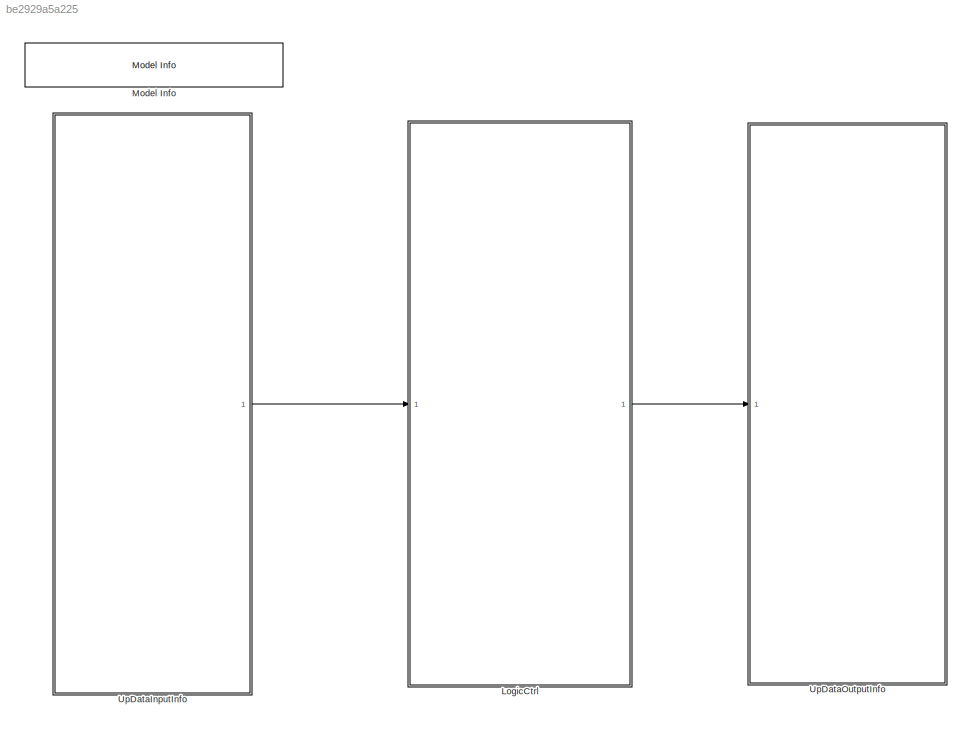
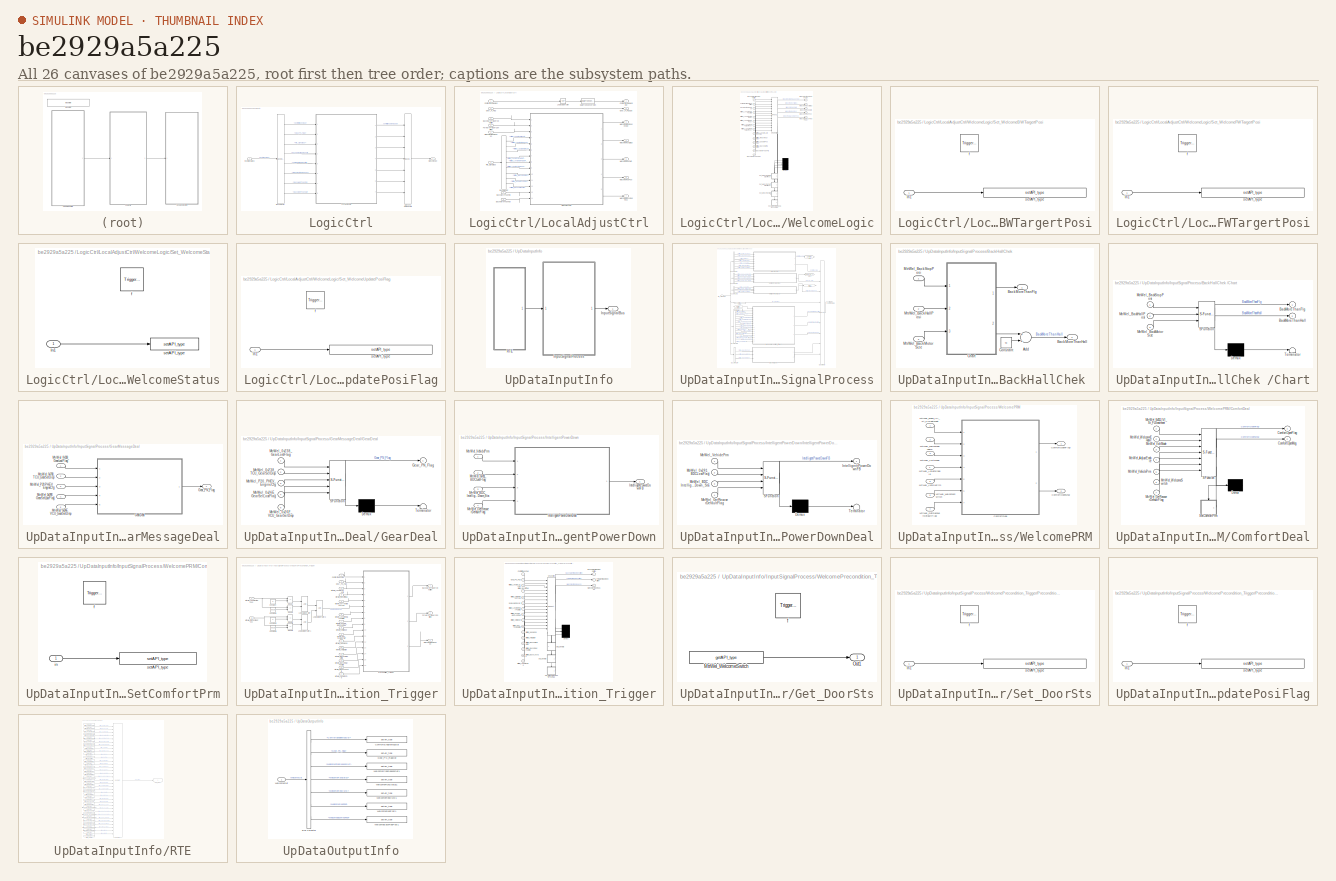
[diagram: thumbnail index - all 26 canvases of the model, root first then tree order]
MODEL slx_be2929a5a225
KIND model
BLOCK [SubSystem] LogicCtrl
  Ports = [1, 1]
  Priority = 2
  RTWFcnNameOpts = Use subsystem name
  RTWSystemCode = Nonreusable function
  RequestExecContextInheritance = off
  TreatAsAtomicUnit = on
BLOCK [BusSelector] LogicCtrl/Bus Selector
  OutputAsBus = off
  OutputSignals = ComfortOpenMsg,Gear_PN_Flag,Rte_SignalBus,BackwardTriggerCondition,ForwardTriggerCondition,WelcomeStopReason,BackMoreThanFlg,BackMoreThanHall
  Ports = [1, 8]
BLOCK [Inport] LogicCtrl/InputSignalBus
  IconDisplay = Port number
BLOCK [SubSystem] LogicCtrl/LocalAdjustCtrl
  AttributesFormatString = %<Description>
  Description = 加热逻辑处理
  Ports = [8, 7]
  RequestExecContextInheritance = off
BLOCK [Inport] LogicCtrl/LocalAdjustCtrl/BackMoreThanFlg
  IconDisplay = Port number
  Port = 7
BLOCK [Inport] LogicCtrl/LocalAdjustCtrl/BackMoreThanHall
  IconDisplay = Port number
  Port = 8
BLOCK [Inport] LogicCtrl/LocalAdjustCtrl/BackwardTriggerCondition
  IconDisplay = Port number
  Port = 4
BLOCK [BusSelector] LogicCtrl/LocalAdjustCtrl/Bus Selector
  OutputAsBus = off
  OutputSignals = MtrWel_LengthHallFaultSts,MtrWel_LengthStopPosi,MtrWel_LengthHallPosi,MtrWel_LengthFWTargetPosi,MtrWel_LengthBWTargetPosi,MtrWel_LengthAutoRunFlag,MtrWel_WelcomeStatus,MtrWel_UpdatePosiFlag,MtrWel_BackHallFaultSts
  Ports = [1, 9]
BLOCK [Inport] LogicCtrl/LocalAdjustCtrl/ComfortEnableMsg
  IconDisplay = Port number
BLOCK [Outport] LogicCtrl/LocalAdjustCtrl/ComfortEnableMsgOut
  IconDisplay = Port number
BLOCK [DataTypeConversion] LogicCtrl/LocalAdjustCtrl/Data Type Conversion
  OutDataTypeStr = uint8
  RndMeth = Floor
  SaturateOnIntegerOverflow = off
BLOCK [Inport] LogicCtrl/LocalAdjustCtrl/ForwardTriggerCondition
  IconDisplay = Port number
  Port = 5
BLOCK [Inport] LogicCtrl/LocalAdjustCtrl/Gear_P_Flag
  IconDisplay = Port number
  Port = 2
BLOCK [Outport] LogicCtrl/LocalAdjustCtrl/Gear_P_FlagOut
  IconDisplay = Port number
  Port = 2
BLOCK [Logic] LogicCtrl/LocalAdjustCtrl/Logical Operator
  AllPortsSameDT = off
  Operator = NOT
  OutDataTypeStr = boolean
  Ports = [1, 1]
BLOCK [Inport] LogicCtrl/LocalAdjustCtrl/Rte_SignalBus
  IconDisplay = Port number
  Port = 3
BLOCK [Outport] LogicCtrl/LocalAdjustCtrl/WelcomeBackReqPosi
  IconDisplay = Port number
  Port = 7
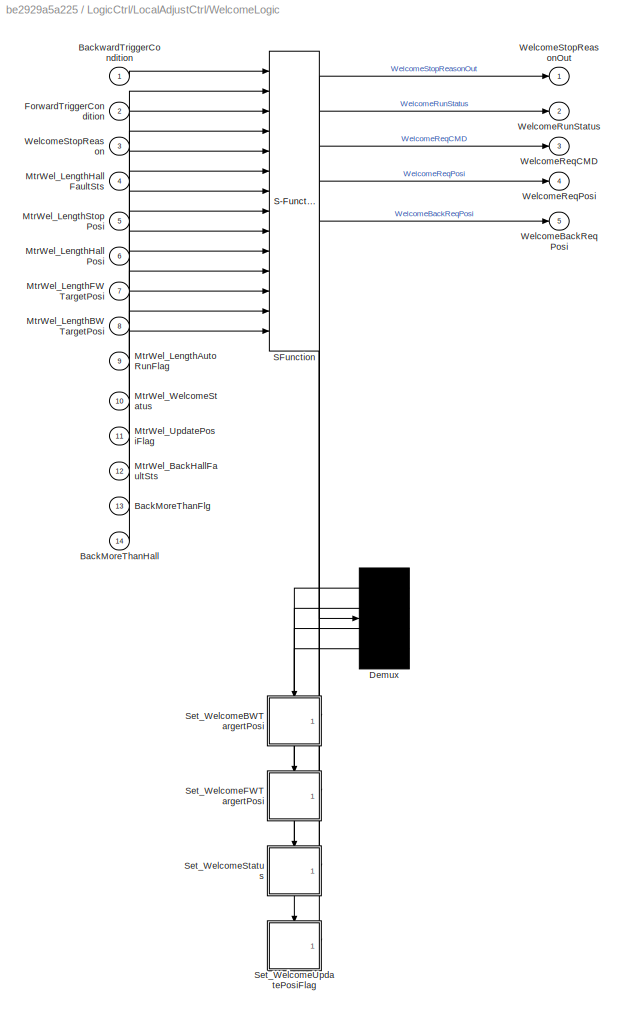
BLOCK [SubSystem] LogicCtrl/LocalAdjustCtrl/WelcomeLogic
  ErrorFcn = Stateflow.Translate.translate
  PermitHierarchicalResolution = ExplicitOnly
  Ports = [14, 5]
  RequestExecContextInheritance = off
  SFBlockType = Chart
  TreatAsAtomicUnit = on
BLOCK [Demux] LogicCtrl/LocalAdjustCtrl/WelcomeLogic/ Demux 
  Ports = [1, 4]
BLOCK [S-Function] LogicCtrl/LocalAdjustCtrl/WelcomeLogic/ SFunction 
  EnableBusSupport = on
  FunctionName = sf_sfun
  Parameters = D_InitDelayTime,D_SoftDistanceDrLegnth,D_WelcomeDistance,FALSE,TRUE
  PortCounts = [14 10]
  Ports = [14, 10]
  SFcnIsStateOwnerBlock = off
  SFunctionDeploymentMode = off
  Tag = Stateflow S-Function Appl_DrComfort_CtrlModel 3
BLOCK [Inport] LogicCtrl/LocalAdjustCtrl/WelcomeLogic/BackMoreThanFlg
  IconDisplay = Port number
  Port = 13
BLOCK [Inport] LogicCtrl/LocalAdjustCtrl/WelcomeLogic/BackMoreThanHall
  IconDisplay = Port number
  Port = 14
BLOCK [Inport] LogicCtrl/LocalAdjustCtrl/WelcomeLogic/BackwardTriggerCondition
  IconDisplay = Port number
BLOCK [Inport] LogicCtrl/LocalAdjustCtrl/WelcomeLogic/ForwardTriggerCondition
  IconDisplay = Port number
  Port = 2
BLOCK [Inport] LogicCtrl/LocalAdjustCtrl/WelcomeLogic/MtrWel_BackHallFaultSts
  IconDisplay = Port number
  Port = 12
BLOCK [Inport] LogicCtrl/LocalAdjustCtrl/WelcomeLogic/MtrWel_LengthAutoRunFlag
  IconDisplay = Port number
  Port = 9
BLOCK [Inport] LogicCtrl/LocalAdjustCtrl/WelcomeLogic/MtrWel_LengthBWTargetPosi
  IconDisplay = Port number
  Port = 8
BLOCK [Inport] LogicCtrl/LocalAdjustCtrl/WelcomeLogic/MtrWel_LengthFWTargetPosi
  IconDisplay = Port number
  Port = 7
BLOCK [Inport] LogicCtrl/LocalAdjustCtrl/WelcomeLogic/MtrWel_LengthHallFaultSts
  IconDisplay = Port number
  Port = 4
BLOCK [Inport] LogicCtrl/LocalAdjustCtrl/WelcomeLogic/MtrWel_LengthHallPosi
  IconDisplay = Port number
  Port = 6
BLOCK [Inport] LogicCtrl/LocalAdjustCtrl/WelcomeLogic/MtrWel_LengthStopPosi
  IconDisplay = Port number
  Port = 5
BLOCK [Inport] LogicCtrl/LocalAdjustCtrl/WelcomeLogic/MtrWel_UpdatePosiFlag
  IconDisplay = Port number
  Port = 11
BLOCK [Inport] LogicCtrl/LocalAdjustCtrl/WelcomeLogic/MtrWel_WelcomeStatus
  IconDisplay = Port number
  Port = 10
BLOCK [SubSystem] LogicCtrl/LocalAdjustCtrl/WelcomeLogic/Set_WelcomeBWTargertPosi
  Ports = [1, 0, 0, 1]
  PreDeleteFcn = Stateflow.SLINSF.SimulinkMan.removePreDeleteFcn
  RequestExecContextInheritance = off
  UndoDeleteFcn = Stateflow.SLINSF.SimulinkMan.restorePreDeleteFcn
BLOCK [Inport] LogicCtrl/LocalAdjustCtrl/WelcomeLogic/Set_WelcomeBWTargertPosi/In1
  IconDisplay = Port number
BLOCK [TriggerPort] LogicCtrl/LocalAdjustCtrl/WelcomeLogic/Set_WelcomeBWTargertPosi/f
  CopyFcn = Stateflow.SLINSF.SimulinkMan.removeBlockPreDeleteFcn
  Ports = []
  PreDeleteFcn = Stateflow.SLINSF.SimulinkMan.unsafePredeleteFcn
  StatesWhenEnabling = held
  TriggerType = function-call
  VariantControl = (inherit)
BLOCK [Reference] LogicCtrl/LocalAdjustCtrl/WelcomeLogic/Set_WelcomeBWTargertPosi/setAPI_type  REF=DareLib/Dare/setAPI_type
  AttributesFormatString = %<g_funcname>
  Ports = [1]
  SourceBlock = DareLib/Dare/setAPI_type
  SourceProductName = Dare Library
  SourceType = Dare Custom
BLOCK [SubSystem] LogicCtrl/LocalAdjustCtrl/WelcomeLogic/Set_WelcomeFWTargertPosi
  Ports = [1, 0, 0, 1]
  PreDeleteFcn = Stateflow.SLINSF.SimulinkMan.removePreDeleteFcn
  RequestExecContextInheritance = off
  UndoDeleteFcn = Stateflow.SLINSF.SimulinkMan.restorePreDeleteFcn
BLOCK [Inport] LogicCtrl/LocalAdjustCtrl/WelcomeLogic/Set_WelcomeFWTargertPosi/In1
  IconDisplay = Port number
BLOCK [TriggerPort] LogicCtrl/LocalAdjustCtrl/WelcomeLogic/Set_WelcomeFWTargertPosi/f
  CopyFcn = Stateflow.SLINSF.SimulinkMan.removeBlockPreDeleteFcn
  Ports = []
  PreDeleteFcn = Stateflow.SLINSF.SimulinkMan.unsafePredeleteFcn
  StatesWhenEnabling = held
  TriggerType = function-call
  VariantControl = (inherit)
BLOCK [Reference] LogicCtrl/LocalAdjustCtrl/WelcomeLogic/Set_WelcomeFWTargertPosi/setAPI_type  REF=DareLib/Dare/setAPI_type
  AttributesFormatString = %<g_funcname>
  Ports = [1]
  SourceBlock = DareLib/Dare/setAPI_type
  SourceProductName = Dare Library
  SourceType = Dare Custom
BLOCK [SubSystem] LogicCtrl/LocalAdjustCtrl/WelcomeLogic/Set_WelcomeStatus
  Ports = [1, 0, 0, 1]
  PreDeleteFcn = Stateflow.SLINSF.SimulinkMan.removePreDeleteFcn
  RequestExecContextInheritance = off
  UndoDeleteFcn = Stateflow.SLINSF.SimulinkMan.restorePreDeleteFcn
BLOCK [Inport] LogicCtrl/LocalAdjustCtrl/WelcomeLogic/Set_WelcomeStatus/In1
  IconDisplay = Port number
BLOCK [TriggerPort] LogicCtrl/LocalAdjustCtrl/WelcomeLogic/Set_WelcomeStatus/f
  CopyFcn = Stateflow.SLINSF.SimulinkMan.removeBlockPreDeleteFcn
  Ports = []
  PreDeleteFcn = Stateflow.SLINSF.SimulinkMan.unsafePredeleteFcn
  StatesWhenEnabling = held
  TriggerType = function-call
  VariantControl = (inherit)
BLOCK [Reference] LogicCtrl/LocalAdjustCtrl/WelcomeLogic/Set_WelcomeStatus/setAPI_type  REF=DareLib/Dare/setAPI_type
  AttributesFormatString = %<g_funcname>
  Ports = [1]
  SourceBlock = DareLib/Dare/setAPI_type
  SourceProductName = Dare Library
  SourceType = Dare Custom
BLOCK [SubSystem] LogicCtrl/LocalAdjustCtrl/WelcomeLogic/Set_WelcomeUpdatePosiFlag
  Ports = [1, 0, 0, 1]
  PreDeleteFcn = Stateflow.SLINSF.SimulinkMan.removePreDeleteFcn
  RequestExecContextInheritance = off
  UndoDeleteFcn = Stateflow.SLINSF.SimulinkMan.restorePreDeleteFcn
BLOCK [Inport] LogicCtrl/LocalAdjustCtrl/WelcomeLogic/Set_WelcomeUpdatePosiFlag/In1
  IconDisplay = Port number
BLOCK [TriggerPort] LogicCtrl/LocalAdjustCtrl/WelcomeLogic/Set_WelcomeUpdatePosiFlag/f
  CopyFcn = Stateflow.SLINSF.SimulinkMan.removeBlockPreDeleteFcn
  Ports = []
  PreDeleteFcn = Stateflow.SLINSF.SimulinkMan.unsafePredeleteFcn
  StatesWhenEnabling = held
  TriggerType = function-call
  VariantControl = (inherit)
BLOCK [Reference] LogicCtrl/LocalAdjustCtrl/WelcomeLogic/Set_WelcomeUpdatePosiFlag/setAPI_type  REF=DareLib/Dare/setAPI_type
  AttributesFormatString = %<g_funcname>
  Ports = [1]
  SourceBlock = DareLib/Dare/setAPI_type
  SourceProductName = Dare Library
  SourceType = Dare Custom
BLOCK [Outport] LogicCtrl/LocalAdjustCtrl/WelcomeLogic/WelcomeBackReqPosi
  IconDisplay = Port number
  Port = 5
BLOCK [Outport] LogicCtrl/LocalAdjustCtrl/WelcomeLogic/WelcomeReqCMD
  IconDisplay = Port number
  Port = 3
BLOCK [Outport] LogicCtrl/LocalAdjustCtrl/WelcomeLogic/WelcomeReqPosi
  IconDisplay = Port number
  Port = 4
BLOCK [Outport] LogicCtrl/LocalAdjustCtrl/WelcomeLogic/WelcomeRunStatus
  IconDisplay = Port number
  Port = 2
BLOCK [Inport] LogicCtrl/LocalAdjustCtrl/WelcomeLogic/WelcomeStopReason
  IconDisplay = Port number
  Port = 3
BLOCK [Outport] LogicCtrl/LocalAdjustCtrl/WelcomeLogic/WelcomeStopReasonOut
  IconDisplay = Port number
BLOCK [Outport] LogicCtrl/LocalAdjustCtrl/WelcomeReqCMD
  IconDisplay = Port number
  Port = 5
BLOCK [Outport] LogicCtrl/LocalAdjustCtrl/WelcomeReqPosi
  IconDisplay = Port number
  Port = 6
BLOCK [Outport] LogicCtrl/LocalAdjustCtrl/WelcomeRunStatus
  IconDisplay = Port number
  Port = 4
BLOCK [Inport] LogicCtrl/LocalAdjustCtrl/WelcomeStopReason
  IconDisplay = Port number
  Port = 6
BLOCK [Outport] LogicCtrl/LocalAdjustCtrl/WelcomeStopReasonOut
  IconDisplay = Port number
  Port = 3
BLOCK [BusCreator] LogicCtrl/MainVent_OutputLvlSts
  DisplayOption = bar
  InheritFromInputs = on
  Inputs = 7
  Ports = [7, 1]
BLOCK [Outport] LogicCtrl/WelcomeOut
  IconDisplay = Port number
BLOCK [Reference] Model Info  REF=simulink/Model-Wide
Utilities/Model Info
  Ports = []
  SourceBlock = simulink/Model-Wide\nUtilities/Model Info
  SourceProductBaseCode = SL
  SourceProductName = Simulink
  SourceType = CMBlock
BLOCK [SubSystem] UpDataInputInfo
  Ports = [0, 1]
  Priority = 1
  RTWFcnNameOpts = Use subsystem name
  RTWSystemCode = Nonreusable function
  RequestExecContextInheritance = off
  TreatAsAtomicUnit = on
BLOCK [Outport] UpDataInputInfo/InputSignalBus
  IconDisplay = Port number
BLOCK [SubSystem] UpDataInputInfo/InputSignalProcess
  AttributesFormatString = %<Description>
  Description = 数据处理
  Ports = [1, 1]
  RTWFcnNameOpts = Use subsystem name
  RTWSystemCode = Nonreusable function
  RequestExecContextInheritance = off
BLOCK [SubSystem] UpDataInputInfo/InputSignalProcess/BackHallChek 
  Ports = [3, 2]
  RequestExecContextInheritance = off
BLOCK [Sum] UpDataInputInfo/InputSignalProcess/BackHallChek /Add
  AccumDataTypeStr = uint16
  InputSameDT = off
  OutDataTypeStr = Inherit: Inherit via internal rule
  Ports = [2, 1]
  SaturateOnIntegerOverflow = off
BLOCK [Outport] UpDataInputInfo/InputSignalProcess/BackHallChek /BackMoreThanFlg
  IconDisplay = Port number
BLOCK [Outport] UpDataInputInfo/InputSignalProcess/BackHallChek /BackMoreThanHall
  IconDisplay = Port number
  Port = 2
BLOCK [SubSystem] UpDataInputInfo/InputSignalProcess/BackHallChek /Chart
  ErrorFcn = Stateflow.Translate.translate
  PermitHierarchicalResolution = ExplicitOnly
  Ports = [3, 2]
  RequestExecContextInheritance = off
  SFBlockType = Chart
  TreatAsAtomicUnit = on
BLOCK [Demux] UpDataInputInfo/InputSignalProcess/BackHallChek /Chart/ Demux 
  Outputs = 1
  Ports = [1, 1]
BLOCK [S-Function] UpDataInputInfo/InputSignalProcess/BackHallChek /Chart/ SFunction 
  EnableBusSupport = on
  FunctionName = sf_sfun
  Parameters = FALSE,TRUE
  PortCounts = [3 3]
  Ports = [3, 3]
  SFcnIsStateOwnerBlock = off
  SFunctionDeploymentMode = off
  Tag = Stateflow S-Function Appl_DrComfort_CtrlModel 2
BLOCK [Terminator] UpDataInputInfo/InputSignalProcess/BackHallChek /Chart/ Terminator 
BLOCK [Outport] UpDataInputInfo/InputSignalProcess/BackHallChek /Chart/BackMoreThanFlg
  IconDisplay = Port number
BLOCK [Outport] UpDataInputInfo/InputSignalProcess/BackHallChek /Chart/BackMoreThanHall
  IconDisplay = Port number
  Port = 2
BLOCK [Inport] UpDataInputInfo/InputSignalProcess/BackHallChek /Chart/MtrWel_BackHallPosi
  IconDisplay = Port number
  Port = 2
BLOCK [Inport] UpDataInputInfo/InputSignalProcess/BackHallChek /Chart/MtrWel_BackMotorSize
  IconDisplay = Port number
  Port = 3
BLOCK [Inport] UpDataInputInfo/InputSignalProcess/BackHallChek /Chart/MtrWel_BackStopPosi
  IconDisplay = Port number
BLOCK [Constant] UpDataInputInfo/InputSignalProcess/BackHallChek /Constant
  OutDataTypeStr = uint16
  Value = 40
BLOCK [Inport] UpDataInputInfo/InputSignalProcess/BackHallChek /MtrWel_BackHallPosi
  IconDisplay = Port number
  Port = 2
BLOCK [Inport] UpDataInputInfo/InputSignalProcess/BackHallChek /MtrWel_BackMotorSize
  IconDisplay = Port number
  Port = 3
BLOCK [Inport] UpDataInputInfo/InputSignalProcess/BackHallChek /MtrWel_BackStopPosi
  IconDisplay = Port number
BLOCK [BusCreator] UpDataInputInfo/InputSignalProcess/Bus Creator
  DisplayOption = bar
  InheritFromInputs = on
  Inputs = 9
  Ports = [9, 1]
BLOCK [BusSelector] UpDataInputInfo/InputSignalProcess/Bus Selector
  OutputAsBus = off
  OutputSignals = MtrWel_0x351_IVI_St_FLSeatmeet,MtrWel_WelcomeEnable,MtrWel_VoltMode,MtrWel_AdjustEnable,MtrWel_VehiclePrm,MtrWel_WelcomeSwitch,MtrWel_GetRecoverDefaultFlag
  Ports = [1, 7]
BLOCK [BusSelector] UpDataInputInfo/InputSignalProcess/Bus Selector1
  OutputAsBus = off
  OutputSignals = MtrWel_0x238_GearLostFlag,MtrWel_0x238_TCU_GearSelDisp,MtrWel_P20_PHEV_EngineCfg,MtrWel_0x26E_GearSelLostFlag,MtrWel_0x26E_VCU_GearSelDisp
  Ports = [1, 5]
BLOCK [BusSelector] UpDataInputInfo/InputSignalProcess/Bus Selector2
  OutputAsBus = off
  OutputSignals = MtrWel_BusoffFlag,MtrWel_CurrentMoveType,MtrWel_LengthStopPosi,MtrWel_LengthRelayFaultSts,MtrWel_0x28E_BDCLostFlag,MtrWel_VoltMode,MtrWel_BDC_FLDoorSts,MtrWel_LengthLockSts,MtrWel_NapMode,MtrWel_VoltSatisfy,MtrWel_BackHallFaultSts,MtrWel_BackRelayFaultSts,MtrWel_BackLockSts,MtrWel_BackStopPosi,MtrWel_LengthCmd
  Ports = [1, 15]
BLOCK [BusSelector] UpDataInputInfo/InputSignalProcess/Bus Selector3
  Commented = on
  OutputAsBus = off
  OutputSignals = MtrWel_VehiclePrm,MtrWel_0x281_BDCLostFlag,MtrWel_BDC_IntelligentPowerDown_Sta,MtrWel_GetRecoverDefaultFlag
  Ports = [1, 4]
BLOCK [BusSelector] UpDataInputInfo/InputSignalProcess/Bus Selector4
  OutputAsBus = off
  OutputSignals = MtrWel_BackStopPosi,MtrWel_BackHallPosi,MtrWel_BackMotorSize
  Ports = [1, 3]
BLOCK [From] UpDataInputInfo/InputSignalProcess/From
  GotoTag = ComfortOpenFlag
BLOCK [From] UpDataInputInfo/InputSignalProcess/From1
  GotoTag = Gear_PN_Flag
BLOCK [From] UpDataInputInfo/InputSignalProcess/From2
  Commented = on
  GotoTag = IntelligentPowerDownFB
BLOCK [SubSystem] UpDataInputInfo/InputSignalProcess/GearMessageDeal
  AttributesFormatString = %<Description>
  Description = 档位报文处理
  Ports = [5, 1]
  RequestExecContextInheritance = off
BLOCK [SubSystem] UpDataInputInfo/InputSignalProcess/GearMessageDeal/GearDeal
  ErrorFcn = Stateflow.Translate.translate
  PermitHierarchicalResolution = ExplicitOnly
  Ports = [5, 1]
  RequestExecContextInheritance = off
  SFBlockType = Chart
  TreatAsAtomicUnit = on
BLOCK [Demux] UpDataInputInfo/InputSignalProcess/GearMessageDeal/GearDeal/ Demux 
  Outputs = 1
  Ports = [1, 1]
BLOCK [S-Function] UpDataInputInfo/InputSignalProcess/GearMessageDeal/GearDeal/ SFunction 
  EnableBusSupport = on
  FunctionName = sf_sfun
  Parameters = FALSE,TRUE
  PortCounts = [5 2]
  Ports = [5, 2]
  SFcnIsStateOwnerBlock = off
  SFunctionDeploymentMode = off
  Tag = Stateflow S-Function Appl_DrComfort_CtrlModel 6
BLOCK [Terminator] UpDataInputInfo/InputSignalProcess/GearMessageDeal/GearDeal/ Terminator 
BLOCK [Outport] UpDataInputInfo/InputSignalProcess/GearMessageDeal/GearDeal/Gear_PN_Flag
  IconDisplay = Port number
BLOCK [Inport] UpDataInputInfo/InputSignalProcess/GearMessageDeal/GearDeal/MtrWel_0x238_GearLostFlag
  IconDisplay = Port number
BLOCK [Inport] UpDataInputInfo/InputSignalProcess/GearMessageDeal/GearDeal/MtrWel_0x238_TCU_GearSelDisp
  IconDisplay = Port number
  Port = 2
BLOCK [Inport] UpDataInputInfo/InputSignalProcess/GearMessageDeal/GearDeal/MtrWel_0x26E_GearSelLostFlag
  IconDisplay = Port number
  Port = 4
BLOCK [Inport] UpDataInputInfo/InputSignalProcess/GearMessageDeal/GearDeal/MtrWel_0x26E_VCU_GearSelDisp
  IconDisplay = Port number
  Port = 5
BLOCK [Inport] UpDataInputInfo/InputSignalProcess/GearMessageDeal/GearDeal/MtrWel_P20_PHEV_EngineCfg
  IconDisplay = Port number
  Port = 3
BLOCK [Outport] UpDataInputInfo/InputSignalProcess/GearMessageDeal/Gear_PN_Flag
  IconDisplay = Port number
BLOCK [Inport] UpDataInputInfo/InputSignalProcess/GearMessageDeal/MtrWel_0x238_GearLostFlag
  IconDisplay = Port number
BLOCK [Inport] UpDataInputInfo/InputSignalProcess/GearMessageDeal/MtrWel_0x238_TCU_GearSelDisp
  IconDisplay = Port number
  Port = 2
BLOCK [Inport] UpDataInputInfo/InputSignalProcess/GearMessageDeal/MtrWel_0x26E_GearSelLostFlag
  IconDisplay = Port number
  Port = 4
BLOCK [Inport] UpDataInputInfo/InputSignalProcess/GearMessageDeal/MtrWel_0x26E_VCU_GearSelDisp
  IconDisplay = Port number
  Port = 5
BLOCK [Inport] UpDataInputInfo/InputSignalProcess/GearMessageDeal/MtrWel_P20_PHEV_EngineCfg
  IconDisplay = Port number
  Port = 3
BLOCK [Goto] UpDataInputInfo/InputSignalProcess/Goto
  GotoTag = ComfortOpenFlag
BLOCK [Goto] UpDataInputInfo/InputSignalProcess/Goto1
  GotoTag = Gear_PN_Flag
BLOCK [Goto] UpDataInputInfo/InputSignalProcess/Goto2
  Commented = on
  GotoTag = IntelligentPowerDownFB
BLOCK [Outport] UpDataInputInfo/InputSignalProcess/InputSignalBus
  IconDisplay = Port number
BLOCK [SubSystem] UpDataInputInfo/InputSignalProcess/IntelligentPowerDown
  AttributesFormatString = %<Description>
  Commented = on
  Description = 智能下电处理
  Ports = [4, 1]
  RequestExecContextInheritance = off
BLOCK [SubSystem] UpDataInputInfo/InputSignalProcess/IntelligentPowerDown/IntelligentPowerDownDeal
  ErrorFcn = Stateflow.Translate.translate
  PermitHierarchicalResolution = ExplicitOnly
  Ports = [4, 1]
  RequestExecContextInheritance = off
  SFBlockType = Chart
  TreatAsAtomicUnit = on
BLOCK [Demux] UpDataInputInfo/InputSignalProcess/IntelligentPowerDown/IntelligentPowerDownDeal/ Demux 
  Outputs = 1
  Ports = [1, 1]
BLOCK [S-Function] UpDataInputInfo/InputSignalProcess/IntelligentPowerDown/IntelligentPowerDownDeal/ SFunction 
  EnableBusSupport = on
  FunctionName = sf_sfun
  Parameters = D_Active,D_Inactive,TRUE
  PortCounts = [4 2]
  Ports = [4, 2]
  SFcnIsStateOwnerBlock = off
  SFunctionDeploymentMode = off
  Tag = Stateflow S-Function Appl_DrComfort_CtrlModel 1
BLOCK [Terminator] UpDataInputInfo/InputSignalProcess/IntelligentPowerDown/IntelligentPowerDownDeal/ Terminator 
BLOCK [Outport] UpDataInputInfo/InputSignalProcess/IntelligentPowerDown/IntelligentPowerDownDeal/IntelligentPowerDownFB
  IconDisplay = Port number
BLOCK [Inport] UpDataInputInfo/InputSignalProcess/IntelligentPowerDown/IntelligentPowerDownDeal/MtrWel_0x281_BDCLostFlag
  IconDisplay = Port number
  Port = 2
BLOCK [Inport] UpDataInputInfo/InputSignalProcess/IntelligentPowerDown/IntelligentPowerDownDeal/MtrWel_BDC_IntelligentPowerDown_Sta
  IconDisplay = Port number
  Port = 3
BLOCK [Inport] UpDataInputInfo/InputSignalProcess/IntelligentPowerDown/IntelligentPowerDownDeal/MtrWel_GetRecoverDefaultFlag
  IconDisplay = Port number
  Port = 4
BLOCK [Inport] UpDataInputInfo/InputSignalProcess/IntelligentPowerDown/IntelligentPowerDownDeal/MtrWel_VehiclePrm
  IconDisplay = Port number
BLOCK [Outport] UpDataInputInfo/InputSignalProcess/IntelligentPowerDown/IntelligentPowerDownFB
  IconDisplay = Port number
BLOCK [Inport] UpDataInputInfo/InputSignalProcess/IntelligentPowerDown/MtrWel_0x281_BDCLostFlag
  IconDisplay = Port number
  Port = 2
BLOCK [Inport] UpDataInputInfo/InputSignalProcess/IntelligentPowerDown/MtrWel_BDC_IntelligentPowerDown_Sta
  IconDisplay = Port number
  Port = 3
BLOCK [Inport] UpDataInputInfo/InputSignalProcess/IntelligentPowerDown/MtrWel_GetRecoverDefaultFlag
  IconDisplay = Port number
  Port = 4
BLOCK [Inport] UpDataInputInfo/InputSignalProcess/IntelligentPowerDown/MtrWel_VehiclePrm
  IconDisplay = Port number
BLOCK [Inport] UpDataInputInfo/InputSignalProcess/Rte_SignalBus
  IconDisplay = Port number
BLOCK [SubSystem] UpDataInputInfo/InputSignalProcess/WelcomePRM
  AttributesFormatString = %<Description>
  Description = 迎宾配置
  Ports = [7, 2]
  RequestExecContextInheritance = off
BLOCK [SubSystem] UpDataInputInfo/InputSignalProcess/WelcomePRM/ComfortDeal
  ErrorFcn = Stateflow.Translate.translate
  PermitHierarchicalResolution = ExplicitOnly
  Ports = [7, 2]
  RequestExecContextInheritance = off
  SFBlockType = Chart
  TreatAsAtomicUnit = on
BLOCK [Demux] UpDataInputInfo/InputSignalProcess/WelcomePRM/ComfortDeal/ Demux 
  Outputs = 1
  Ports = [1, 1]
BLOCK [S-Function] UpDataInputInfo/InputSignalProcess/WelcomePRM/ComfortDeal/ SFunction 
  EnableBusSupport = on
  FunctionName = sf_sfun
  Parameters = D_InitDelayTime,FALSE,TRUE
  PortCounts = [7 4]
  Ports = [7, 4]
  SFcnIsStateOwnerBlock = off
  SFunctionDeploymentMode = off
  Tag = Stateflow S-Function Appl_DrComfort_CtrlModel 11
BLOCK [Outport] UpDataInputInfo/InputSignalProcess/WelcomePRM/ComfortDeal/ComfortOpenFlag
  IconDisplay = Port number
BLOCK [Outport] UpDataInputInfo/InputSignalProcess/WelcomePRM/ComfortDeal/ComfortOpenMsg
  IconDisplay = Port number
  Port = 2
BLOCK [Inport] UpDataInputInfo/InputSignalProcess/WelcomePRM/ComfortDeal/MtrWel_0x351_IVI_St_FLSeatmeet
  IconDisplay = Port number
BLOCK [Inport] UpDataInputInfo/InputSignalProcess/WelcomePRM/ComfortDeal/MtrWel_AdjustEnable
  IconDisplay = Port number
  Port = 4
BLOCK [Inport] UpDataInputInfo/InputSignalProcess/WelcomePRM/ComfortDeal/MtrWel_GetRecoverDefaultFlag
  IconDisplay = Port number
  Port = 7
BLOCK [Inport] UpDataInputInfo/InputSignalProcess/WelcomePRM/ComfortDeal/MtrWel_VehiclePrm
  IconDisplay = Port number
  Port = 5
BLOCK [Inport] UpDataInputInfo/InputSignalProcess/WelcomePRM/ComfortDeal/MtrWel_VoltMode
  IconDisplay = Port number
  Port = 3
BLOCK [Inport] UpDataInputInfo/InputSignalProcess/WelcomePRM/ComfortDeal/MtrWel_WelcomeEnable
  IconDisplay = Port number
  Port = 2
BLOCK [Inport] UpDataInputInfo/InputSignalProcess/WelcomePRM/ComfortDeal/MtrWel_WelcomeSwitch
  IconDisplay = Port number
  Port = 6
BLOCK [SubSystem] UpDataInputInfo/InputSignalProcess/WelcomePRM/ComfortDeal/SetComfortPrm
  Ports = [1, 0, 0, 1]
  PreDeleteFcn = Stateflow.SLINSF.SimulinkMan.removePreDeleteFcn
  RequestExecContextInheritance = off
  UndoDeleteFcn = Stateflow.SLINSF.SimulinkMan.restorePreDeleteFcn
BLOCK [TriggerPort] UpDataInputInfo/InputSignalProcess/WelcomePRM/ComfortDeal/SetComfortPrm/f
  CopyFcn = Stateflow.SLINSF.SimulinkMan.removeBlockPreDeleteFcn
  Ports = []
  PreDeleteFcn = Stateflow.SLINSF.SimulinkMan.unsafePredeleteFcn
  StatesWhenEnabling = held
  TriggerType = function-call
  VariantControl = (inherit)
BLOCK [Inport] UpDataInputInfo/InputSignalProcess/WelcomePRM/ComfortDeal/SetComfortPrm/in
  IconDisplay = Port number
BLOCK [Reference] UpDataInputInfo/InputSignalProcess/WelcomePRM/ComfortDeal/SetComfortPrm/setAPI_type  REF=DareLib/Dare/setAPI_type
  AttributesFormatString = %<g_funcname>
  Ports = [1]
  SourceBlock = DareLib/Dare/setAPI_type
  SourceProductName = Dare Library
  SourceType = Dare Custom
BLOCK [Outport] UpDataInputInfo/InputSignalProcess/WelcomePRM/ComfortOpenFlag
  IconDisplay = Port number
BLOCK [Outport] UpDataInputInfo/InputSignalProcess/WelcomePRM/ComfortOpenMsg
  IconDisplay = Port number
  Port = 2
BLOCK [Inport] UpDataInputInfo/InputSignalProcess/WelcomePRM/MtrWel_0x351_IVI_St_FLSeatmeet
  IconDisplay = Port number
BLOCK [Inport] UpDataInputInfo/InputSignalProcess/WelcomePRM/MtrWel_AdjustEnable
  IconDisplay = Port number
  Port = 4
BLOCK [Inport] UpDataInputInfo/InputSignalProcess/WelcomePRM/MtrWel_GetRecoverDefaultFlag
  IconDisplay = Port number
  Port = 7
BLOCK [Inport] UpDataInputInfo/InputSignalProcess/WelcomePRM/MtrWel_VehiclePrm
  IconDisplay = Port number
  Port = 5
BLOCK [Inport] UpDataInputInfo/InputSignalProcess/WelcomePRM/MtrWel_VoltMode
  IconDisplay = Port number
  Port = 3
BLOCK [Inport] UpDataInputInfo/InputSignalProcess/WelcomePRM/MtrWel_WelcomeEnable
  IconDisplay = Port number
  Port = 2
BLOCK [Inport] UpDataInputInfo/InputSignalProcess/WelcomePRM/MtrWel_WelcomeSwitch
  IconDisplay = Port number
  Port = 6
BLOCK [SubSystem] UpDataInputInfo/InputSignalProcess/WelcomePrecondition_Trigger
  AttributesFormatString = %<Description>
  Description = 迎宾前置条件_触发条件
  Ports = [17, 3]
  RequestExecContextInheritance = off
BLOCK [Outport] UpDataInputInfo/InputSignalProcess/WelcomePrecondition_Trigger/BackwardTriggerCondition
  IconDisplay = Port number
BLOCK [Inport] UpDataInputInfo/InputSignalProcess/WelcomePrecondition_Trigger/ComfortOpenFlag
  IconDisplay = Port number
BLOCK [Constant] UpDataInputInfo/InputSignalProcess/WelcomePrecondition_Trigger/Constant
  Value = 0
BLOCK [Constant] UpDataInputInfo/InputSignalProcess/WelcomePrecondition_Trigger/Constant1
  Value = 65535
BLOCK [Constant] UpDataInputInfo/InputSignalProcess/WelcomePrecondition_Trigger/Constant2
  Value = 0
BLOCK [Constant] UpDataInputInfo/InputSignalProcess/WelcomePrecondition_Trigger/Constant3
  Value = 65535
BLOCK [RelationalOperator] UpDataInputInfo/InputSignalProcess/WelcomePrecondition_Trigger/Equal
  InputSameDT = off
  Operator = ~=
  OutDataTypeStr = boolean
  Ports = [2, 1]
  RndMeth = Simplest
BLOCK [RelationalOperator] UpDataInputInfo/InputSignalProcess/WelcomePrecondition_Trigger/Equal1
  InputSameDT = off
  Operator = ~=
  OutDataTypeStr = boolean
  Ports = [2, 1]
  RndMeth = Simplest
BLOCK [RelationalOperator] UpDataInputInfo/InputSignalProcess/WelcomePrecondition_Trigger/Equal2
  InputSameDT = off
  Operator = ~=
  OutDataTypeStr = boolean
  Ports = [2, 1]
  RndMeth = Simplest
BLOCK [RelationalOperator] UpDataInputInfo/InputSignalProcess/WelcomePrecondition_Trigger/Equal3
  InputSameDT = off
  Operator = ~=
  OutDataTypeStr = boolean
  Ports = [2, 1]
  RndMeth = Simplest
BLOCK [Outport] UpDataInputInfo/InputSignalProcess/WelcomePrecondition_Trigger/ForwardTriggerCondition
  IconDisplay = Port number
  Port = 2
BLOCK [Inport] UpDataInputInfo/InputSignalProcess/WelcomePrecondition_Trigger/Gear_PN_Flag
  IconDisplay = Port number
  Port = 2
BLOCK [Logic] UpDataInputInfo/InputSignalProcess/WelcomePrecondition_Trigger/Logical Operator
  AllPortsSameDT = off
  OutDataTypeStr = boolean
  Ports = [2, 1]
BLOCK [Logic] UpDataInputInfo/InputSignalProcess/WelcomePrecondition_Trigger/Logical Operator1
  AllPortsSameDT = off
  OutDataTypeStr = boolean
  Ports = [2, 1]
BLOCK [Logic] UpDataInputInfo/InputSignalProcess/WelcomePrecondition_Trigger/Logical Operator2
  AllPortsSameDT = off
  OutDataTypeStr = boolean
  Ports = [2, 1]
BLOCK [Inport] UpDataInputInfo/InputSignalProcess/WelcomePrecondition_Trigger/MtrWel_0x28E_BDCLostFlag
  IconDisplay = Port number
  Port = 7
BLOCK [Inport] UpDataInputInfo/InputSignalProcess/WelcomePrecondition_Trigger/MtrWel_BDC_FLDoorSts
  IconDisplay = Port number
  Port = 9
BLOCK [Inport] UpDataInputInfo/InputSignalProcess/WelcomePrecondition_Trigger/MtrWel_BackHallFaultSts
  IconDisplay = Port number
  Port = 13
BLOCK [Inport] UpDataInputInfo/InputSignalProcess/WelcomePrecondition_Trigger/MtrWel_BackLockSts
  IconDisplay = Port number
  Port = 15
BLOCK [Inport] UpDataInputInfo/InputSignalProcess/WelcomePrecondition_Trigger/MtrWel_BackRelayFaultSts
  IconDisplay = Port number
  Port = 14
BLOCK [Inport] UpDataInputInfo/InputSignalProcess/WelcomePrecondition_Trigger/MtrWel_BackStopPosi
  IconDisplay = Port number
  Port = 16
BLOCK [Inport] UpDataInputInfo/InputSignalProcess/WelcomePrecondition_Trigger/MtrWel_BusoffFlag
  IconDisplay = Port number
  Port = 3
BLOCK [Inport] UpDataInputInfo/InputSignalProcess/WelcomePrecondition_Trigger/MtrWel_CurrentMoveType
  IconDisplay = Port number
  Port = 4
BLOCK [Inport] UpDataInputInfo/InputSignalProcess/WelcomePrecondition_Trigger/MtrWel_LengthCmd
  IconDisplay = Port number
  Port = 17
BLOCK [Inport] UpDataInputInfo/InputSignalProcess/WelcomePrecondition_Trigger/MtrWel_LengthLockSts
  IconDisplay = Port number
  Port = 10
BLOCK [Inport] UpDataInputInfo/InputSignalProcess/WelcomePrecondition_Trigger/MtrWel_LengthRelayFaultSts
  IconDisplay = Port number
  Port = 6
BLOCK [Inport] UpDataInputInfo/InputSignalProcess/WelcomePrecondition_Trigger/MtrWel_LengthStopPosi
  IconDisplay = Port number
  Port = 5
BLOCK [Inport] UpDataInputInfo/InputSignalProcess/WelcomePrecondition_Trigger/MtrWel_NapMode
  IconDisplay = Port number
  Port = 11
BLOCK [Inport] UpDataInputInfo/InputSignalProcess/WelcomePrecondition_Trigger/MtrWel_VoltMode
  IconDisplay = Port number
  Port = 8
BLOCK [Inport] UpDataInputInfo/InputSignalProcess/WelcomePrecondition_Trigger/MtrWel_VoltSatisfy
  IconDisplay = Port number
  Port = 12
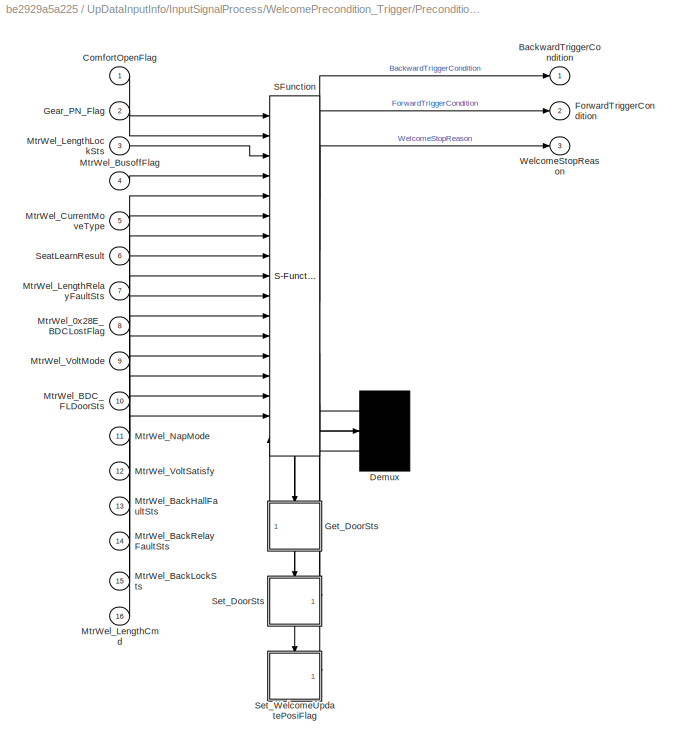
BLOCK [SubSystem] UpDataInputInfo/InputSignalProcess/WelcomePrecondition_Trigger/Precondition_Trigger
  ErrorFcn = Stateflow.Translate.translate
  PermitHierarchicalResolution = ExplicitOnly
  Ports = [16, 3]
  RequestExecContextInheritance = off
  SFBlockType = Chart
  TreatAsAtomicUnit = on
BLOCK [Demux] UpDataInputInfo/InputSignalProcess/WelcomePrecondition_Trigger/Precondition_Trigger/ Demux 
  Outputs = 3
  Ports = [1, 3]
BLOCK [S-Function] UpDataInputInfo/InputSignalProcess/WelcomePrecondition_Trigger/Precondition_Trigger/ SFunction 
  EnableBusSupport = on
  FunctionName = sf_sfun
  Parameters = D_CLOSE,D_OPEN,FALSE,TRUE
  PortCounts = [17 6]
  Ports = [17, 6]
  SFcnIsStateOwnerBlock = off
  SFunctionDeploymentMode = off
  Tag = Stateflow S-Function Appl_DrComfort_CtrlModel 7
BLOCK [Outport] UpDataInputInfo/InputSignalProcess/WelcomePrecondition_Trigger/Precondition_Trigger/BackwardTriggerCondition
  IconDisplay = Port number
BLOCK [Inport] UpDataInputInfo/InputSignalProcess/WelcomePrecondition_Trigger/Precondition_Trigger/ComfortOpenFlag
  IconDisplay = Port number
BLOCK [Outport] UpDataInputInfo/InputSignalProcess/WelcomePrecondition_Trigger/Precondition_Trigger/ForwardTriggerCondition
  IconDisplay = Port number
  Port = 2
BLOCK [Inport] UpDataInputInfo/InputSignalProcess/WelcomePrecondition_Trigger/Precondition_Trigger/Gear_PN_Flag
  IconDisplay = Port number
  Port = 2
BLOCK [SubSystem] UpDataInputInfo/InputSignalProcess/WelcomePrecondition_Trigger/Precondition_Trigger/Get_DoorSts
  Ports = [0, 1, 0, 1]
  PreDeleteFcn = Stateflow.SLINSF.SimulinkMan.removePreDeleteFcn
  RequestExecContextInheritance = off
  UndoDeleteFcn = Stateflow.SLINSF.SimulinkMan.restorePreDeleteFcn
BLOCK [Reference] UpDataInputInfo/InputSignalProcess/WelcomePrecondition_Trigger/Precondition_Trigger/Get_DoorSts/MtrWel_WelcomeSwitch  REF=DareLib/Dare/getAPI_type
  AttributesFormatString = %<g_funcname>
  Ports = [0, 1]
  SourceBlock = DareLib/Dare/getAPI_type
  SourceProductName = Dare Library
  SourceType = Dare Custom
BLOCK [Outport] UpDataInputInfo/InputSignalProcess/WelcomePrecondition_Trigger/Precondition_Trigger/Get_DoorSts/Out1
  IconDisplay = Port number
BLOCK [TriggerPort] UpDataInputInfo/InputSignalProcess/WelcomePrecondition_Trigger/Precondition_Trigger/Get_DoorSts/f
  CopyFcn = Stateflow.SLINSF.SimulinkMan.removeBlockPreDeleteFcn
  Ports = []
  PreDeleteFcn = Stateflow.SLINSF.SimulinkMan.unsafePredeleteFcn
  StatesWhenEnabling = held
  TriggerType = function-call
  VariantControl = (inherit)
BLOCK [Inport] UpDataInputInfo/InputSignalProcess/WelcomePrecondition_Trigger/Precondition_Trigger/MtrWel_0x28E_BDCLostFlag
  IconDisplay = Port number
  Port = 8
BLOCK [Inport] UpDataInputInfo/InputSignalProcess/WelcomePrecondition_Trigger/Precondition_Trigger/MtrWel_BDC_FLDoorSts
  IconDisplay = Port number
  Port = 10
BLOCK [Inport] UpDataInputInfo/InputSignalProcess/WelcomePrecondition_Trigger/Precondition_Trigger/MtrWel_BackHallFaultSts
  IconDisplay = Port number
  Port = 13
BLOCK [Inport] UpDataInputInfo/InputSignalProcess/WelcomePrecondition_Trigger/Precondition_Trigger/MtrWel_BackLockSts
  IconDisplay = Port number
  Port = 15
BLOCK [Inport] UpDataInputInfo/InputSignalProcess/WelcomePrecondition_Trigger/Precondition_Trigger/MtrWel_BackRelayFaultSts
  IconDisplay = Port number
  Port = 14
BLOCK [Inport] UpDataInputInfo/InputSignalProcess/WelcomePrecondition_Trigger/Precondition_Trigger/MtrWel_BusoffFlag
  IconDisplay = Port number
  Port = 4
BLOCK [Inport] UpDataInputInfo/InputSignalProcess/WelcomePrecondition_Trigger/Precondition_Trigger/MtrWel_CurrentMoveType
  IconDisplay = Port number
  Port = 5
BLOCK [Inport] UpDataInputInfo/InputSignalProcess/WelcomePrecondition_Trigger/Precondition_Trigger/MtrWel_LengthCmd
  IconDisplay = Port number
  Port = 16
BLOCK [Inport] UpDataInputInfo/InputSignalProcess/WelcomePrecondition_Trigger/Precondition_Trigger/MtrWel_LengthLockSts
  IconDisplay = Port number
  Port = 3
BLOCK [Inport] UpDataInputInfo/InputSignalProcess/WelcomePrecondition_Trigger/Precondition_Trigger/MtrWel_LengthRelayFaultSts
  IconDisplay = Port number
  Port = 7
BLOCK [Inport] UpDataInputInfo/InputSignalProcess/WelcomePrecondition_Trigger/Precondition_Trigger/MtrWel_NapMode
  IconDisplay = Port number
  Port = 11
BLOCK [Inport] UpDataInputInfo/InputSignalProcess/WelcomePrecondition_Trigger/Precondition_Trigger/MtrWel_VoltMode
  IconDisplay = Port number
  Port = 9
BLOCK [Inport] UpDataInputInfo/InputSignalProcess/WelcomePrecondition_Trigger/Precondition_Trigger/MtrWel_VoltSatisfy
  IconDisplay = Port number
  Port = 12
BLOCK [Inport] UpDataInputInfo/InputSignalProcess/WelcomePrecondition_Trigger/Precondition_Trigger/SeatLearnResult
  IconDisplay = Port number
  Port = 6
BLOCK [SubSystem] UpDataInputInfo/InputSignalProcess/WelcomePrecondition_Trigger/Precondition_Trigger/Set_DoorSts
  Ports = [1, 0, 0, 1]
  PreDeleteFcn = Stateflow.SLINSF.SimulinkMan.removePreDeleteFcn
  RequestExecContextInheritance = off
  UndoDeleteFcn = Stateflow.SLINSF.SimulinkMan.restorePreDeleteFcn
BLOCK [Inport] UpDataInputInfo/InputSignalProcess/WelcomePrecondition_Trigger/Precondition_Trigger/Set_DoorSts/In1
  IconDisplay = Port number
BLOCK [TriggerPort] UpDataInputInfo/InputSignalProcess/WelcomePrecondition_Trigger/Precondition_Trigger/Set_DoorSts/f
  CopyFcn = Stateflow.SLINSF.SimulinkMan.removeBlockPreDeleteFcn
  Ports = []
  PreDeleteFcn = Stateflow.SLINSF.SimulinkMan.unsafePredeleteFcn
  StatesWhenEnabling = held
  TriggerType = function-call
  VariantControl = (inherit)
BLOCK [Reference] UpDataInputInfo/InputSignalProcess/WelcomePrecondition_Trigger/Precondition_Trigger/Set_DoorSts/setAPI_type  REF=DareLib/Dare/setAPI_type
  AttributesFormatString = %<g_funcname>
  Ports = [1]
  SourceBlock = DareLib/Dare/setAPI_type
  SourceProductName = Dare Library
  SourceType = Dare Custom
BLOCK [SubSystem] UpDataInputInfo/InputSignalProcess/WelcomePrecondition_Trigger/Precondition_Trigger/Set_WelcomeUpdatePosiFlag
  Ports = [1, 0, 0, 1]
  PreDeleteFcn = Stateflow.SLINSF.SimulinkMan.removePreDeleteFcn
  RequestExecContextInheritance = off
  UndoDeleteFcn = Stateflow.SLINSF.SimulinkMan.restorePreDeleteFcn
BLOCK [Inport] UpDataInputInfo/InputSignalProcess/WelcomePrecondition_Trigger/Precondition_Trigger/Set_WelcomeUpdatePosiFlag/In1
  IconDisplay = Port number
BLOCK [TriggerPort] UpDataInputInfo/InputSignalProcess/WelcomePrecondition_Trigger/Precondition_Trigger/Set_WelcomeUpdatePosiFlag/f
  CopyFcn = Stateflow.SLINSF.SimulinkMan.removeBlockPreDeleteFcn
  Ports = []
  PreDeleteFcn = Stateflow.SLINSF.SimulinkMan.unsafePredeleteFcn
  StatesWhenEnabling = held
  TriggerType = function-call
  VariantControl = (inherit)
BLOCK [Reference] UpDataInputInfo/InputSignalProcess/WelcomePrecondition_Trigger/Precondition_Trigger/Set_WelcomeUpdatePosiFlag/setAPI_type  REF=DareLib/Dare/setAPI_type
  AttributesFormatString = %<g_funcname>
  Ports = [1]
  SourceBlock = DareLib/Dare/setAPI_type
  SourceProductName = Dare Library
  SourceType = Dare Custom
BLOCK [Outport] UpDataInputInfo/InputSignalProcess/WelcomePrecondition_Trigger/Precondition_Trigger/WelcomeStopReason
  IconDisplay = Port number
  Port = 3
BLOCK [Outport] UpDataInputInfo/InputSignalProcess/WelcomePrecondition_Trigger/WelcomeStopReason
  IconDisplay = Port number
  Port = 3
BLOCK [SubSystem] UpDataInputInfo/RTE
  AttributesFormatString = %<Description>
  Description = 接口自动生成
  Ports = [0, 1]
  RTWFcnNameOpts = Use subsystem name
  RTWSystemCode = Nonreusable function
  RequestExecContextInheritance = off
  TreatAsAtomicUnit = on
BLOCK [BusCreator] UpDataInputInfo/RTE/Bus Creator
  DisplayOption = bar
  InheritFromInputs = on
  Inputs = 35
  Ports = [35, 1]
BLOCK [Reference] UpDataInputInfo/RTE/MtrWel_0x238_GearLostFlag  REF=DareLib/Dare/getAPI_type
  AttributesFormatString = %<g_funcname>
  Ports = [0, 1]
  SourceBlock = DareLib/Dare/getAPI_type
  SourceProductName = Dare Library
  SourceType = Dare Custom
BLOCK [Reference] UpDataInputInfo/RTE/MtrWel_0x238_TCU_GearSelDisp  REF=DareLib/Dare/getAPI_type
  AttributesFormatString = %<g_funcname>
  Ports = [0, 1]
  SourceBlock = DareLib/Dare/getAPI_type
  SourceProductName = Dare Library
  SourceType = Dare Custom
BLOCK [Reference] UpDataInputInfo/RTE/MtrWel_0x26E_GearSelLostFlag  REF=DareLib/Dare/getAPI_type
  AttributesFormatString = %<g_funcname>
  Ports = [0, 1]
  SourceBlock = DareLib/Dare/getAPI_type
  SourceProductName = Dare Library
  SourceType = Dare Custom
BLOCK [Reference] UpDataInputInfo/RTE/MtrWel_0x26E_VCU_GearSelDisp  REF=DareLib/Dare/getAPI_type
  AttributesFormatString = %<g_funcname>
  Ports = [0, 1]
  SourceBlock = DareLib/Dare/getAPI_type
  SourceProductName = Dare Library
  SourceType = Dare Custom
BLOCK [Reference] UpDataInputInfo/RTE/MtrWel_0x28E_BDCLostFlag  REF=DareLib/Dare/getAPI_type
  AttributesFormatString = %<g_funcname>
  Ports = [0, 1]
  SourceBlock = DareLib/Dare/getAPI_type
  SourceProductName = Dare Library
  SourceType = Dare Custom
BLOCK [Reference] UpDataInputInfo/RTE/MtrWel_0x351_IVI_St_FLSeatmeet  REF=DareLib/Dare/getAPI_type
  AttributesFormatString = %<g_funcname>
  Ports = [0, 1]
  SourceBlock = DareLib/Dare/getAPI_type
  SourceProductName = Dare Library
  SourceType = Dare Custom
BLOCK [Reference] UpDataInputInfo/RTE/MtrWel_AdjustEnable  REF=DareLib/Dare/getAPI_type
  AttributesFormatString = %<g_funcname>
  Ports = [0, 1]
  SourceBlock = DareLib/Dare/getAPI_type
  SourceProductName = Dare Library
  SourceType = Dare Custom
BLOCK [Reference] UpDataInputInfo/RTE/MtrWel_BDC_FLDoorSts  REF=DareLib/Dare/getAPI_type
  AttributesFormatString = %<g_funcname>
  Ports = [0, 1]
  SourceBlock = DareLib/Dare/getAPI_type
  SourceProductName = Dare Library
  SourceType = Dare Custom
BLOCK [Reference] UpDataInputInfo/RTE/MtrWel_BackHallFaultSts  REF=DareLib/Dare/getAPI_type
  AttributesFormatString = %<g_funcname>
  Ports = [0, 1]
  SourceBlock = DareLib/Dare/getAPI_type
  SourceProductName = Dare Library
  SourceType = Dare Custom
BLOCK [Reference] UpDataInputInfo/RTE/MtrWel_BackHallPosi  REF=DareLib/Dare/getAPI_type
  AttributesFormatString = %<g_funcname>
  Ports = [0, 1]
  SourceBlock = DareLib/Dare/getAPI_type
  SourceProductName = Dare Library
  SourceType = Dare Custom
BLOCK [Reference] UpDataInputInfo/RTE/MtrWel_BackLockSts  REF=DareLib/Dare/getAPI_type
  AttributesFormatString = %<g_funcname>
  Ports = [0, 1]
  SourceBlock = DareLib/Dare/getAPI_type
  SourceProductName = Dare Library
  SourceType = Dare Custom
BLOCK [Reference] UpDataInputInfo/RTE/MtrWel_BackMotorSize  REF=DareLib/Dare/getAPI_type
  AttributesFormatString = %<g_funcname>
  Ports = [0, 1]
  SourceBlock = DareLib/Dare/getAPI_type
  SourceProductName = Dare Library
  SourceType = Dare Custom
BLOCK [Reference] UpDataInputInfo/RTE/MtrWel_BackRelayFaultSts  REF=DareLib/Dare/getAPI_type
  AttributesFormatString = %<g_funcname>
  Ports = [0, 1]
  SourceBlock = DareLib/Dare/getAPI_type
  SourceProductName = Dare Library
  SourceType = Dare Custom
BLOCK [Reference] UpDataInputInfo/RTE/MtrWel_BackStopPosi  REF=DareLib/Dare/getAPI_type
  AttributesFormatString = %<g_funcname>
  Ports = [0, 1]
  SourceBlock = DareLib/Dare/getAPI_type
  SourceProductName = Dare Library
  SourceType = Dare Custom
BLOCK [Reference] UpDataInputInfo/RTE/MtrWel_BusoffFlag  REF=DareLib/Dare/getAPI_type
  AttributesFormatString = %<g_funcname>
  Ports = [0, 1]
  SourceBlock = DareLib/Dare/getAPI_type
  SourceProductName = Dare Library
  SourceType = Dare Custom
BLOCK [Reference] UpDataInputInfo/RTE/MtrWel_CurrentMoveType  REF=DareLib/Dare/getAPI_type
  AttributesFormatString = %<g_funcname>
  Ports = [0, 1]
  SourceBlock = DareLib/Dare/getAPI_type
  SourceProductName = Dare Library
  SourceType = Dare Custom
BLOCK [Reference] UpDataInputInfo/RTE/MtrWel_GetRecoverDefaultFlag  REF=DareLib/Dare/getAPI_type
  AttributesFormatString = %<g_funcname>
  Ports = [0, 1]
  SourceBlock = DareLib/Dare/getAPI_type
  SourceProductName = Dare Library
  SourceType = Dare Custom
BLOCK [Reference] UpDataInputInfo/RTE/MtrWel_LengthAutoRunFlag  REF=DareLib/Dare/getAPI_type
  AttributesFormatString = %<g_funcname>
  Ports = [0, 1]
  SourceBlock = DareLib/Dare/getAPI_type
  SourceProductName = Dare Library
  SourceType = Dare Custom
BLOCK [Reference] UpDataInputInfo/RTE/MtrWel_LengthBWTargetPosi  REF=DareLib/Dare/getAPI_type
  AttributesFormatString = %<g_funcname>
  Ports = [0, 1]
  SourceBlock = DareLib/Dare/getAPI_type
  SourceProductName = Dare Library
  SourceType = Dare Custom
BLOCK [Reference] UpDataInputInfo/RTE/MtrWel_LengthCmd  REF=DareLib/Dare/getAPI_type
  AttributesFormatString = %<g_funcname>
  Ports = [0, 1]
  SourceBlock = DareLib/Dare/getAPI_type
  SourceProductName = Dare Library
  SourceType = Dare Custom
BLOCK [Reference] UpDataInputInfo/RTE/MtrWel_LengthFWTargetPosi  REF=DareLib/Dare/getAPI_type
  AttributesFormatString = %<g_funcname>
  Ports = [0, 1]
  SourceBlock = DareLib/Dare/getAPI_type
  SourceProductName = Dare Library
  SourceType = Dare Custom
BLOCK [Reference] UpDataInputInfo/RTE/MtrWel_LengthHallFaultSts  REF=DareLib/Dare/getAPI_type
  AttributesFormatString = %<g_funcname>
  Ports = [0, 1]
  SourceBlock = DareLib/Dare/getAPI_type
  SourceProductName = Dare Library
  SourceType = Dare Custom
BLOCK [Reference] UpDataInputInfo/RTE/MtrWel_LengthHallPosi  REF=DareLib/Dare/getAPI_type
  AttributesFormatString = %<g_funcname>
  Ports = [0, 1]
  SourceBlock = DareLib/Dare/getAPI_type
  SourceProductName = Dare Library
  SourceType = Dare Custom
BLOCK [Reference] UpDataInputInfo/RTE/MtrWel_LengthLockSts  REF=DareLib/Dare/getAPI_type
  AttributesFormatString = %<g_funcname>
  Ports = [0, 1]
  SourceBlock = DareLib/Dare/getAPI_type
  SourceProductName = Dare Library
  SourceType = Dare Custom
BLOCK [Reference] UpDataInputInfo/RTE/MtrWel_LengthRelayFaultSts  REF=DareLib/Dare/getAPI_type
  AttributesFormatString = %<g_funcname>
  Ports = [0, 1]
  SourceBlock = DareLib/Dare/getAPI_type
  SourceProductName = Dare Library
  SourceType = Dare Custom
BLOCK [Reference] UpDataInputInfo/RTE/MtrWel_LengthStopPosi  REF=DareLib/Dare/getAPI_type
  AttributesFormatString = %<g_funcname>
  Ports = [0, 1]
  SourceBlock = DareLib/Dare/getAPI_type
  SourceProductName = Dare Library
  SourceType = Dare Custom
BLOCK [Reference] UpDataInputInfo/RTE/MtrWel_NapMode  REF=DareLib/Dare/getAPI_type
  AttributesFormatString = %<g_funcname>
  Ports = [0, 1]
  SourceBlock = DareLib/Dare/getAPI_type
  SourceProductName = Dare Library
  SourceType = Dare Custom
BLOCK [Reference] UpDataInputInfo/RTE/MtrWel_P20_PHEV_EngineCfg  REF=DareLib/Dare/getAPI_type
  AttributesFormatString = %<g_funcname>
  Ports = [0, 1]
  SourceBlock = DareLib/Dare/getAPI_type
  SourceProductName = Dare Library
  SourceType = Dare Custom
BLOCK [Reference] UpDataInputInfo/RTE/MtrWel_UpdatePosiFlag  REF=DareLib/Dare/getAPI_type
  AttributesFormatString = %<g_funcname>
  Ports = [0, 1]
  SourceBlock = DareLib/Dare/getAPI_type
  SourceProductName = Dare Library
  SourceType = Dare Custom
BLOCK [Reference] UpDataInputInfo/RTE/MtrWel_VehiclePrm  REF=DareLib/Dare/getAPI_type
  AttributesFormatString = %<g_funcname>
  Ports = [0, 1]
  SourceBlock = DareLib/Dare/getAPI_type
  SourceProductName = Dare Library
  SourceType = Dare Custom
BLOCK [Reference] UpDataInputInfo/RTE/MtrWel_VoltMode  REF=DareLib/Dare/getAPI_type
  AttributesFormatString = %<g_funcname>
  Ports = [0, 1]
  SourceBlock = DareLib/Dare/getAPI_type
  SourceProductName = Dare Library
  SourceType = Dare Custom
BLOCK [Reference] UpDataInputInfo/RTE/MtrWel_VoltSatisfy  REF=DareLib/Dare/getAPI_type
  AttributesFormatString = %<g_funcname>
  Ports = [0, 1]
  SourceBlock = DareLib/Dare/getAPI_type
  SourceProductName = Dare Library
  SourceType = Dare Custom
BLOCK [Reference] UpDataInputInfo/RTE/MtrWel_WelcomeEnable  REF=DareLib/Dare/getAPI_type
  AttributesFormatString = %<g_funcname>
  Ports = [0, 1]
  SourceBlock = DareLib/Dare/getAPI_type
  SourceProductName = Dare Library
  SourceType = Dare Custom
BLOCK [Reference] UpDataInputInfo/RTE/MtrWel_WelcomeStatus  REF=DareLib/Dare/getAPI_type
  AttributesFormatString = %<g_funcname>
  Ports = [0, 1]
  SourceBlock = DareLib/Dare/getAPI_type
  SourceProductName = Dare Library
  SourceType = Dare Custom
BLOCK [Reference] UpDataInputInfo/RTE/MtrWel_WelcomeSwitch  REF=DareLib/Dare/getAPI_type
  AttributesFormatString = %<g_funcname>
  Ports = [0, 1]
  SourceBlock = DareLib/Dare/getAPI_type
  SourceProductName = Dare Library
  SourceType = Dare Custom
BLOCK [Outport] UpDataInputInfo/RTE/RTE_Signal
  IconDisplay = Port number
BLOCK [SubSystem] UpDataOutputInfo
  Ports = [1]
  Priority = 3
  RTWFcnNameOpts = Use subsystem name
  RTWSystemCode = Nonreusable function
  RequestExecContextInheritance = off
  TreatAsAtomicUnit = on
BLOCK [BusSelector] UpDataOutputInfo/Bus Selector
  OutputAsBus = off
  OutputSignals = ComfortEnableMsgOut,Gear_PN_Flag,WelcomeStopReasonOut,WelcomeRunStatus,WelcomeReqCMD,WelcomeReqPosi,WelcomeBackReqPosi
  Ports = [1, 7]
BLOCK [Reference] UpDataOutputInfo/ComfortEnableMsgOut  REF=DareLib/Dare/setAPI_type
  AttributesFormatString = %<g_funcname>
  Ports = [1]
  SourceBlock = DareLib/Dare/setAPI_type
  SourceProductName = Dare Library
  SourceType = Dare Custom
BLOCK [Reference] UpDataOutputInfo/Gear_PN_FlagOut  REF=DareLib/Dare/setAPI_type
  AttributesFormatString = %<g_funcname>
  Commented = on
  Ports = [1]
  SourceBlock = DareLib/Dare/setAPI_type
  SourceProductName = Dare Library
  SourceType = Dare Custom
BLOCK [Reference] UpDataOutputInfo/WelcomeBackReqPosi1  REF=DareLib/Dare/setAPI_type
  AttributesFormatString = %<g_funcname>
  Ports = [1]
  SourceBlock = DareLib/Dare/setAPI_type
  SourceProductName = Dare Library
  SourceType = Dare Custom
BLOCK [Inport] UpDataOutputInfo/WelcomeOut
  IconDisplay = Port number
BLOCK [Reference] UpDataOutputInfo/WelcomeReqCMD1  REF=DareLib/Dare/setAPI_type
  AttributesFormatString = %<g_funcname>
  Ports = [1]
  SourceBlock = DareLib/Dare/setAPI_type
  SourceProductName = Dare Library
  SourceType = Dare Custom
BLOCK [Reference] UpDataOutputInfo/WelcomeReqPosi1  REF=DareLib/Dare/setAPI_type
  AttributesFormatString = %<g_funcname>
  Ports = [1]
  SourceBlock = DareLib/Dare/setAPI_type
  SourceProductName = Dare Library
  SourceType = Dare Custom
BLOCK [Reference] UpDataOutputInfo/WelcomeRunStatus1  REF=DareLib/Dare/setAPI_type
  AttributesFormatString = %<g_funcname>
  Ports = [1]
  SourceBlock = DareLib/Dare/setAPI_type
  SourceProductName = Dare Library
  SourceType = Dare Custom
BLOCK [Reference] UpDataOutputInfo/WelcomeStopReasonOut1  REF=DareLib/Dare/setAPI_type
  AttributesFormatString = %<g_funcname>
  Ports = [1]
  SourceBlock = DareLib/Dare/setAPI_type
  SourceProductName = Dare Library
  SourceType = Dare Custom
LINE LogicCtrl/Bus Selector:1 -> LogicCtrl/LocalAdjustCtrl:1
LINE LogicCtrl/Bus Selector:2 -> LogicCtrl/LocalAdjustCtrl:2
LINE LogicCtrl/Bus Selector:3 -> LogicCtrl/LocalAdjustCtrl:3
LINE LogicCtrl/Bus Selector:4 -> LogicCtrl/LocalAdjustCtrl:4
LINE LogicCtrl/Bus Selector:5 -> LogicCtrl/LocalAdjustCtrl:5
LINE LogicCtrl/Bus Selector:6 -> LogicCtrl/LocalAdjustCtrl:6
LINE LogicCtrl/Bus Selector:7 -> LogicCtrl/LocalAdjustCtrl:7
LINE LogicCtrl/Bus Selector:8 -> LogicCtrl/LocalAdjustCtrl:8
LINE LogicCtrl/InputSignalBus:1 -> LogicCtrl/Bus Selector:1
LINE LogicCtrl/LocalAdjustCtrl/BackMoreThanFlg:1 -> LogicCtrl/LocalAdjustCtrl/WelcomeLogic:13
LINE LogicCtrl/LocalAdjustCtrl/BackMoreThanHall:1 -> LogicCtrl/LocalAdjustCtrl/WelcomeLogic:14
LINE LogicCtrl/LocalAdjustCtrl/BackwardTriggerCondition:1 -> LogicCtrl/LocalAdjustCtrl/WelcomeLogic:1
LINE LogicCtrl/LocalAdjustCtrl/Bus Selector:1 -> LogicCtrl/LocalAdjustCtrl/WelcomeLogic:4
LINE LogicCtrl/LocalAdjustCtrl/Bus Selector:2 -> LogicCtrl/LocalAdjustCtrl/WelcomeLogic:5
LINE LogicCtrl/LocalAdjustCtrl/Bus Selector:3 -> LogicCtrl/LocalAdjustCtrl/WelcomeLogic:6
LINE LogicCtrl/LocalAdjustCtrl/Bus Selector:4 -> LogicCtrl/LocalAdjustCtrl/WelcomeLogic:7
LINE LogicCtrl/LocalAdjustCtrl/Bus Selector:5 -> LogicCtrl/LocalAdjustCtrl/WelcomeLogic:8
LINE LogicCtrl/LocalAdjustCtrl/Bus Selector:6 -> LogicCtrl/LocalAdjustCtrl/WelcomeLogic:9
LINE LogicCtrl/LocalAdjustCtrl/Bus Selector:7 -> LogicCtrl/LocalAdjustCtrl/WelcomeLogic:10
LINE LogicCtrl/LocalAdjustCtrl/Bus Selector:8 -> LogicCtrl/LocalAdjustCtrl/WelcomeLogic:11
LINE LogicCtrl/LocalAdjustCtrl/Bus Selector:9 -> LogicCtrl/LocalAdjustCtrl/WelcomeLogic:12
LINE LogicCtrl/LocalAdjustCtrl/ComfortEnableMsg:1 -> LogicCtrl/LocalAdjustCtrl/Logical Operator:1
LINE LogicCtrl/LocalAdjustCtrl/Data Type Conversion:1 -> LogicCtrl/LocalAdjustCtrl/ComfortEnableMsgOut:1
LINE LogicCtrl/LocalAdjustCtrl/ForwardTriggerCondition:1 -> LogicCtrl/LocalAdjustCtrl/WelcomeLogic:2
LINE LogicCtrl/LocalAdjustCtrl/Gear_P_Flag:1 -> LogicCtrl/LocalAdjustCtrl/Gear_P_FlagOut:1
LINE LogicCtrl/LocalAdjustCtrl/Logical Operator:1 -> LogicCtrl/LocalAdjustCtrl/Data Type Conversion:1
LINE LogicCtrl/LocalAdjustCtrl/Rte_SignalBus:1 -> LogicCtrl/LocalAdjustCtrl/Bus Selector:1
LINE LogicCtrl/LocalAdjustCtrl/WelcomeLogic:1 -> LogicCtrl/LocalAdjustCtrl/WelcomeStopReasonOut:1
LINE LogicCtrl/LocalAdjustCtrl/WelcomeLogic:2 -> LogicCtrl/LocalAdjustCtrl/WelcomeRunStatus:1
LINE LogicCtrl/LocalAdjustCtrl/WelcomeLogic:3 -> LogicCtrl/LocalAdjustCtrl/WelcomeReqCMD:1
LINE LogicCtrl/LocalAdjustCtrl/WelcomeLogic:4 -> LogicCtrl/LocalAdjustCtrl/WelcomeReqPosi:1
LINE LogicCtrl/LocalAdjustCtrl/WelcomeLogic:5 -> LogicCtrl/LocalAdjustCtrl/WelcomeBackReqPosi:1
LINE LogicCtrl/LocalAdjustCtrl/WelcomeStopReason:1 -> LogicCtrl/LocalAdjustCtrl/WelcomeLogic:3
LINE LogicCtrl/LocalAdjustCtrl:1 -> LogicCtrl/MainVent_OutputLvlSts:1
LINE LogicCtrl/LocalAdjustCtrl:2 -> LogicCtrl/MainVent_OutputLvlSts:2
LINE LogicCtrl/LocalAdjustCtrl:3 -> LogicCtrl/MainVent_OutputLvlSts:3
LINE LogicCtrl/LocalAdjustCtrl:4 -> LogicCtrl/MainVent_OutputLvlSts:4
LINE LogicCtrl/LocalAdjustCtrl:5 -> LogicCtrl/MainVent_OutputLvlSts:5
LINE LogicCtrl/LocalAdjustCtrl:6 -> LogicCtrl/MainVent_OutputLvlSts:6
LINE LogicCtrl/LocalAdjustCtrl:7 -> LogicCtrl/MainVent_OutputLvlSts:7
LINE LogicCtrl/MainVent_OutputLvlSts:1 -> LogicCtrl/WelcomeOut:1
LINE LogicCtrl:1 -> UpDataOutputInfo:1
LINE UpDataInputInfo/InputSignalProcess/BackHallChek /Add:1 -> UpDataInputInfo/InputSignalProcess/BackHallChek /BackMoreThanHall:1
LINE UpDataInputInfo/InputSignalProcess/BackHallChek /Chart:1 -> UpDataInputInfo/InputSignalProcess/BackHallChek /BackMoreThanFlg:1
LINE UpDataInputInfo/InputSignalProcess/BackHallChek /Chart:2 -> UpDataInputInfo/InputSignalProcess/BackHallChek /Add:1
LINE UpDataInputInfo/InputSignalProcess/BackHallChek /Constant:1 -> UpDataInputInfo/InputSignalProcess/BackHallChek /Add:2
LINE UpDataInputInfo/InputSignalProcess/BackHallChek /MtrWel_BackHallPosi:1 -> UpDataInputInfo/InputSignalProcess/BackHallChek /Chart:2
LINE UpDataInputInfo/InputSignalProcess/BackHallChek /MtrWel_BackMotorSize:1 -> UpDataInputInfo/InputSignalProcess/BackHallChek /Chart:3
LINE UpDataInputInfo/InputSignalProcess/BackHallChek /MtrWel_BackStopPosi:1 -> UpDataInputInfo/InputSignalProcess/BackHallChek /Chart:1
LINE UpDataInputInfo/InputSignalProcess/BackHallChek :1 -> UpDataInputInfo/InputSignalProcess/Bus Creator:8
LINE UpDataInputInfo/InputSignalProcess/BackHallChek :2 -> UpDataInputInfo/InputSignalProcess/Bus Creator:9
LINE UpDataInputInfo/InputSignalProcess/Bus Creator:1 -> UpDataInputInfo/InputSignalProcess/InputSignalBus:1
LINE UpDataInputInfo/InputSignalProcess/Bus Selector1:1 -> UpDataInputInfo/InputSignalProcess/GearMessageDeal:1
LINE UpDataInputInfo/InputSignalProcess/Bus Selector1:2 -> UpDataInputInfo/InputSignalProcess/GearMessageDeal:2
LINE UpDataInputInfo/InputSignalProcess/Bus Selector1:3 -> UpDataInputInfo/InputSignalProcess/GearMessageDeal:3
LINE UpDataInputInfo/InputSignalProcess/Bus Selector1:4 -> UpDataInputInfo/InputSignalProcess/GearMessageDeal:4
LINE UpDataInputInfo/InputSignalProcess/Bus Selector1:5 -> UpDataInputInfo/InputSignalProcess/GearMessageDeal:5
LINE UpDataInputInfo/InputSignalProcess/Bus Selector2:1 -> UpDataInputInfo/InputSignalProcess/WelcomePrecondition_Trigger:3
LINE UpDataInputInfo/InputSignalProcess/Bus Selector2:10 -> UpDataInputInfo/InputSignalProcess/WelcomePrecondition_Trigger:12
LINE UpDataInputInfo/InputSignalProcess/Bus Selector2:11 -> UpDataInputInfo/InputSignalProcess/WelcomePrecondition_Trigger:13
LINE UpDataInputInfo/InputSignalProcess/Bus Selector2:12 -> UpDataInputInfo/InputSignalProcess/WelcomePrecondition_Trigger:14
LINE UpDataInputInfo/InputSignalProcess/Bus Selector2:13 -> UpDataInputInfo/InputSignalProcess/WelcomePrecondition_Trigger:15
LINE UpDataInputInfo/InputSignalProcess/Bus Selector2:14 -> UpDataInputInfo/InputSignalProcess/WelcomePrecondition_Trigger:16
LINE UpDataInputInfo/InputSignalProcess/Bus Selector2:15 -> UpDataInputInfo/InputSignalProcess/WelcomePrecondition_Trigger:17
LINE UpDataInputInfo/InputSignalProcess/Bus Selector2:2 -> UpDataInputInfo/InputSignalProcess/WelcomePrecondition_Trigger:4
LINE UpDataInputInfo/InputSignalProcess/Bus Selector2:3 -> UpDataInputInfo/InputSignalProcess/WelcomePrecondition_Trigger:5
LINE UpDataInputInfo/InputSignalProcess/Bus Selector2:4 -> UpDataInputInfo/InputSignalProcess/WelcomePrecondition_Trigger:6
LINE UpDataInputInfo/InputSignalProcess/Bus Selector2:5 -> UpDataInputInfo/InputSignalProcess/WelcomePrecondition_Trigger:7
LINE UpDataInputInfo/InputSignalProcess/Bus Selector2:6 -> UpDataInputInfo/InputSignalProcess/WelcomePrecondition_Trigger:8
LINE UpDataInputInfo/InputSignalProcess/Bus Selector2:7 -> UpDataInputInfo/InputSignalProcess/WelcomePrecondition_Trigger:9
LINE UpDataInputInfo/InputSignalProcess/Bus Selector2:8 -> UpDataInputInfo/InputSignalProcess/WelcomePrecondition_Trigger:10
LINE UpDataInputInfo/InputSignalProcess/Bus Selector2:9 -> UpDataInputInfo/InputSignalProcess/WelcomePrecondition_Trigger:11
LINE UpDataInputInfo/InputSignalProcess/Bus Selector3:1 -> UpDataInputInfo/InputSignalProcess/IntelligentPowerDown:1
LINE UpDataInputInfo/InputSignalProcess/Bus Selector3:2 -> UpDataInputInfo/InputSignalProcess/IntelligentPowerDown:2
LINE UpDataInputInfo/InputSignalProcess/Bus Selector3:3 -> UpDataInputInfo/InputSignalProcess/IntelligentPowerDown:3
LINE UpDataInputInfo/InputSignalProcess/Bus Selector3:4 -> UpDataInputInfo/InputSignalProcess/IntelligentPowerDown:4
LINE UpDataInputInfo/InputSignalProcess/Bus Selector4:1 -> UpDataInputInfo/InputSignalProcess/BackHallChek :1
LINE UpDataInputInfo/InputSignalProcess/Bus Selector4:2 -> UpDataInputInfo/InputSignalProcess/BackHallChek :2
LINE UpDataInputInfo/InputSignalProcess/Bus Selector4:3 -> UpDataInputInfo/InputSignalProcess/BackHallChek :3
LINE UpDataInputInfo/InputSignalProcess/Bus Selector:1 -> UpDataInputInfo/InputSignalProcess/WelcomePRM:1
LINE UpDataInputInfo/InputSignalProcess/Bus Selector:2 -> UpDataInputInfo/InputSignalProcess/WelcomePRM:2
LINE UpDataInputInfo/InputSignalProcess/Bus Selector:3 -> UpDataInputInfo/InputSignalProcess/WelcomePRM:3
LINE UpDataInputInfo/InputSignalProcess/Bus Selector:4 -> UpDataInputInfo/InputSignalProcess/WelcomePRM:4
LINE UpDataInputInfo/InputSignalProcess/Bus Selector:5 -> UpDataInputInfo/InputSignalProcess/WelcomePRM:5
LINE UpDataInputInfo/InputSignalProcess/Bus Selector:6 -> UpDataInputInfo/InputSignalProcess/WelcomePRM:6
LINE UpDataInputInfo/InputSignalProcess/Bus Selector:7 -> UpDataInputInfo/InputSignalProcess/WelcomePRM:7
LINE UpDataInputInfo/InputSignalProcess/From1:1 -> UpDataInputInfo/InputSignalProcess/WelcomePrecondition_Trigger:2
LINE UpDataInputInfo/InputSignalProcess/From:1 -> UpDataInputInfo/InputSignalProcess/WelcomePrecondition_Trigger:1
LINE UpDataInputInfo/InputSignalProcess/GearMessageDeal/GearDeal:1 -> UpDataInputInfo/InputSignalProcess/GearMessageDeal/Gear_PN_Flag:1
LINE UpDataInputInfo/InputSignalProcess/GearMessageDeal/MtrWel_0x238_GearLostFlag:1 -> UpDataInputInfo/InputSignalProcess/GearMessageDeal/GearDeal:1
LINE UpDataInputInfo/InputSignalProcess/GearMessageDeal/MtrWel_0x238_TCU_GearSelDisp:1 -> UpDataInputInfo/InputSignalProcess/GearMessageDeal/GearDeal:2
LINE UpDataInputInfo/InputSignalProcess/GearMessageDeal/MtrWel_0x26E_GearSelLostFlag:1 -> UpDataInputInfo/InputSignalProcess/GearMessageDeal/GearDeal:4
LINE UpDataInputInfo/InputSignalProcess/GearMessageDeal/MtrWel_0x26E_VCU_GearSelDisp:1 -> UpDataInputInfo/InputSignalProcess/GearMessageDeal/GearDeal:5
LINE UpDataInputInfo/InputSignalProcess/GearMessageDeal/MtrWel_P20_PHEV_EngineCfg:1 -> UpDataInputInfo/InputSignalProcess/GearMessageDeal/GearDeal:3
NET UpDataInputInfo/InputSignalProcess/GearMessageDeal:1 -> UpDataInputInfo/InputSignalProcess/Bus Creator:2, UpDataInputInfo/InputSignalProcess/Goto1:1
LINE UpDataInputInfo/InputSignalProcess/IntelligentPowerDown/IntelligentPowerDownDeal:1 -> UpDataInputInfo/InputSignalProcess/IntelligentPowerDown/IntelligentPowerDownFB:1
LINE UpDataInputInfo/InputSignalProcess/IntelligentPowerDown/MtrWel_0x281_BDCLostFlag:1 -> UpDataInputInfo/InputSignalProcess/IntelligentPowerDown/IntelligentPowerDownDeal:2
LINE UpDataInputInfo/InputSignalProcess/IntelligentPowerDown/MtrWel_BDC_IntelligentPowerDown_Sta:1 -> UpDataInputInfo/InputSignalProcess/IntelligentPowerDown/IntelligentPowerDownDeal:3
LINE UpDataInputInfo/InputSignalProcess/IntelligentPowerDown/MtrWel_GetRecoverDefaultFlag:1 -> UpDataInputInfo/InputSignalProcess/IntelligentPowerDown/IntelligentPowerDownDeal:4
LINE UpDataInputInfo/InputSignalProcess/IntelligentPowerDown/MtrWel_VehiclePrm:1 -> UpDataInputInfo/InputSignalProcess/IntelligentPowerDown/IntelligentPowerDownDeal:1
NET UpDataInputInfo/InputSignalProcess/IntelligentPowerDown:1 -> UpDataInputInfo/InputSignalProcess/Bus Creator:3, UpDataInputInfo/InputSignalProcess/Goto2:1
NET UpDataInputInfo/InputSignalProcess/Rte_SignalBus:1 -> UpDataInputInfo/InputSignalProcess/Bus Creator:4, UpDataInputInfo/InputSignalProcess/Bus Selector1:1, UpDataInputInfo/InputSignalProcess/Bus Selector2:1, UpDataInputInfo/InputSignalProcess/Bus Selector3:1, UpDataInputInfo/InputSignalProcess/Bus Selector4:1, UpDataInputInfo/InputSignalProcess/Bus Selector:1
LINE UpDataInputInfo/InputSignalProcess/WelcomePRM/ComfortDeal:1 -> UpDataInputInfo/InputSignalProcess/WelcomePRM/ComfortOpenFlag:1
LINE UpDataInputInfo/InputSignalProcess/WelcomePRM/ComfortDeal:2 -> UpDataInputInfo/InputSignalProcess/WelcomePRM/ComfortOpenMsg:1
LINE UpDataInputInfo/InputSignalProcess/WelcomePRM/MtrWel_0x351_IVI_St_FLSeatmeet:1 -> UpDataInputInfo/InputSignalProcess/WelcomePRM/ComfortDeal:1
LINE UpDataInputInfo/InputSignalProcess/WelcomePRM/MtrWel_AdjustEnable:1 -> UpDataInputInfo/InputSignalProcess/WelcomePRM/ComfortDeal:4
LINE UpDataInputInfo/InputSignalProcess/WelcomePRM/MtrWel_GetRecoverDefaultFlag:1 -> UpDataInputInfo/InputSignalProcess/WelcomePRM/ComfortDeal:7
LINE UpDataInputInfo/InputSignalProcess/WelcomePRM/MtrWel_VehiclePrm:1 -> UpDataInputInfo/InputSignalProcess/WelcomePRM/ComfortDeal:5
LINE UpDataInputInfo/InputSignalProcess/WelcomePRM/MtrWel_VoltMode:1 -> UpDataInputInfo/InputSignalProcess/WelcomePRM/ComfortDeal:3
LINE UpDataInputInfo/InputSignalProcess/WelcomePRM/MtrWel_WelcomeEnable:1 -> UpDataInputInfo/InputSignalProcess/WelcomePRM/ComfortDeal:2
LINE UpDataInputInfo/InputSignalProcess/WelcomePRM/MtrWel_WelcomeSwitch:1 -> UpDataInputInfo/InputSignalProcess/WelcomePRM/ComfortDeal:6
LINE UpDataInputInfo/InputSignalProcess/WelcomePRM:1 -> UpDataInputInfo/InputSignalProcess/Goto:1
LINE UpDataInputInfo/InputSignalProcess/WelcomePRM:2 -> UpDataInputInfo/InputSignalProcess/Bus Creator:1
LINE UpDataInputInfo/InputSignalProcess/WelcomePrecondition_Trigger/ComfortOpenFlag:1 -> UpDataInputInfo/InputSignalProcess/WelcomePrecondition_Trigger/Precondition_Trigger:1
LINE UpDataInputInfo/InputSignalProcess/WelcomePrecondition_Trigger/Constant1:1 -> UpDataInputInfo/InputSignalProcess/WelcomePrecondition_Trigger/Equal1:2
LINE UpDataInputInfo/InputSignalProcess/WelcomePrecondition_Trigger/Constant2:1 -> UpDataInputInfo/InputSignalProcess/WelcomePrecondition_Trigger/Equal2:2
LINE UpDataInputInfo/InputSignalProcess/WelcomePrecondition_Trigger/Constant3:1 -> UpDataInputInfo/InputSignalProcess/WelcomePrecondition_Trigger/Equal3:2
LINE UpDataInputInfo/InputSignalProcess/WelcomePrecondition_Trigger/Constant:1 -> UpDataInputInfo/InputSignalProcess/WelcomePrecondition_Trigger/Equal:2
LINE UpDataInputInfo/InputSignalProcess/WelcomePrecondition_Trigger/Equal1:1 -> UpDataInputInfo/InputSignalProcess/WelcomePrecondition_Trigger/Logical Operator:2
LINE UpDataInputInfo/InputSignalProcess/WelcomePrecondition_Trigger/Equal2:1 -> UpDataInputInfo/InputSignalProcess/WelcomePrecondition_Trigger/Logical Operator1:1
LINE UpDataInputInfo/InputSignalProcess/WelcomePrecondition_Trigger/Equal3:1 -> UpDataInputInfo/InputSignalProcess/WelcomePrecondition_Trigger/Logical Operator1:2
LINE UpDataInputInfo/InputSignalProcess/WelcomePrecondition_Trigger/Equal:1 -> UpDataInputInfo/InputSignalProcess/WelcomePrecondition_Trigger/Logical Operator:1
LINE UpDataInputInfo/InputSignalProcess/WelcomePrecondition_Trigger/Gear_PN_Flag:1 -> UpDataInputInfo/InputSignalProcess/WelcomePrecondition_Trigger/Precondition_Trigger:2
LINE UpDataInputInfo/InputSignalProcess/WelcomePrecondition_Trigger/Logical Operator1:1 -> UpDataInputInfo/InputSignalProcess/WelcomePrecondition_Trigger/Logical Operator2:2
LINE UpDataInputInfo/InputSignalProcess/WelcomePrecondition_Trigger/Logical Operator2:1 -> UpDataInputInfo/InputSignalProcess/WelcomePrecondition_Trigger/Precondition_Trigger:6
LINE UpDataInputInfo/InputSignalProcess/WelcomePrecondition_Trigger/Logical Operator:1 -> UpDataInputInfo/InputSignalProcess/WelcomePrecondition_Trigger/Logical Operator2:1
LINE UpDataInputInfo/InputSignalProcess/WelcomePrecondition_Trigger/MtrWel_0x28E_BDCLostFlag:1 -> UpDataInputInfo/InputSignalProcess/WelcomePrecondition_Trigger/Precondition_Trigger:8
LINE UpDataInputInfo/InputSignalProcess/WelcomePrecondition_Trigger/MtrWel_BDC_FLDoorSts:1 -> UpDataInputInfo/InputSignalProcess/WelcomePrecondition_Trigger/Precondition_Trigger:10
LINE UpDataInputInfo/InputSignalProcess/WelcomePrecondition_Trigger/MtrWel_BackHallFaultSts:1 -> UpDataInputInfo/InputSignalProcess/WelcomePrecondition_Trigger/Precondition_Trigger:13
LINE UpDataInputInfo/InputSignalProcess/WelcomePrecondition_Trigger/MtrWel_BackLockSts:1 -> UpDataInputInfo/InputSignalProcess/WelcomePrecondition_Trigger/Precondition_Trigger:15
LINE UpDataInputInfo/InputSignalProcess/WelcomePrecondition_Trigger/MtrWel_BackRelayFaultSts:1 -> UpDataInputInfo/InputSignalProcess/WelcomePrecondition_Trigger/Precondition_Trigger:14
NET UpDataInputInfo/InputSignalProcess/WelcomePrecondition_Trigger/MtrWel_BackStopPosi:1 -> UpDataInputInfo/InputSignalProcess/WelcomePrecondition_Trigger/Equal2:1, UpDataInputInfo/InputSignalProcess/WelcomePrecondition_Trigger/Equal3:1
LINE UpDataInputInfo/InputSignalProcess/WelcomePrecondition_Trigger/MtrWel_BusoffFlag:1 -> UpDataInputInfo/InputSignalProcess/WelcomePrecondition_Trigger/Precondition_Trigger:4
LINE UpDataInputInfo/InputSignalProcess/WelcomePrecondition_Trigger/MtrWel_CurrentMoveType:1 -> UpDataInputInfo/InputSignalProcess/WelcomePrecondition_Trigger/Precondition_Trigger:5
LINE UpDataInputInfo/InputSignalProcess/WelcomePrecondition_Trigger/MtrWel_LengthCmd:1 -> UpDataInputInfo/InputSignalProcess/WelcomePrecondition_Trigger/Precondition_Trigger:16
LINE UpDataInputInfo/InputSignalProcess/WelcomePrecondition_Trigger/MtrWel_LengthLockSts:1 -> UpDataInputInfo/InputSignalProcess/WelcomePrecondition_Trigger/Precondition_Trigger:3
LINE UpDataInputInfo/InputSignalProcess/WelcomePrecondition_Trigger/MtrWel_LengthRelayFaultSts:1 -> UpDataInputInfo/InputSignalProcess/WelcomePrecondition_Trigger/Precondition_Trigger:7
NET UpDataInputInfo/InputSignalProcess/WelcomePrecondition_Trigger/MtrWel_LengthStopPosi:1 -> UpDataInputInfo/InputSignalProcess/WelcomePrecondition_Trigger/Equal1:1, UpDataInputInfo/InputSignalProcess/WelcomePrecondition_Trigger/Equal:1
LINE UpDataInputInfo/InputSignalProcess/WelcomePrecondition_Trigger/MtrWel_NapMode:1 -> UpDataInputInfo/InputSignalProcess/WelcomePrecondition_Trigger/Precondition_Trigger:11
LINE UpDataInputInfo/InputSignalProcess/WelcomePrecondition_Trigger/MtrWel_VoltMode:1 -> UpDataInputInfo/InputSignalProcess/WelcomePrecondition_Trigger/Precondition_Trigger:9
LINE UpDataInputInfo/InputSignalProcess/WelcomePrecondition_Trigger/MtrWel_VoltSatisfy:1 -> UpDataInputInfo/InputSignalProcess/WelcomePrecondition_Trigger/Precondition_Trigger:12
LINE UpDataInputInfo/InputSignalProcess/WelcomePrecondition_Trigger/Precondition_Trigger:1 -> UpDataInputInfo/InputSignalProcess/WelcomePrecondition_Trigger/BackwardTriggerCondition:1
LINE UpDataInputInfo/InputSignalProcess/WelcomePrecondition_Trigger/Precondition_Trigger:2 -> UpDataInputInfo/InputSignalProcess/WelcomePrecondition_Trigger/ForwardTriggerCondition:1
LINE UpDataInputInfo/InputSignalProcess/WelcomePrecondition_Trigger/Precondition_Trigger:3 -> UpDataInputInfo/InputSignalProcess/WelcomePrecondition_Trigger/WelcomeStopReason:1
LINE UpDataInputInfo/InputSignalProcess/WelcomePrecondition_Trigger:1 -> UpDataInputInfo/InputSignalProcess/Bus Creator:5
LINE UpDataInputInfo/InputSignalProcess/WelcomePrecondition_Trigger:2 -> UpDataInputInfo/InputSignalProcess/Bus Creator:6
LINE UpDataInputInfo/InputSignalProcess/WelcomePrecondition_Trigger:3 -> UpDataInputInfo/InputSignalProcess/Bus Creator:7
LINE UpDataInputInfo/InputSignalProcess:1 -> UpDataInputInfo/InputSignalBus:1
LINE UpDataInputInfo/RTE/Bus Creator:1 -> UpDataInputInfo/RTE/RTE_Signal:1
LINE UpDataInputInfo/RTE/MtrWel_0x238_GearLostFlag:1 -> UpDataInputInfo/RTE/Bus Creator:30
LINE UpDataInputInfo/RTE/MtrWel_0x238_TCU_GearSelDisp:1 -> UpDataInputInfo/RTE/Bus Creator:28
LINE UpDataInputInfo/RTE/MtrWel_0x26E_GearSelLostFlag:1 -> UpDataInputInfo/RTE/Bus Creator:32
LINE UpDataInputInfo/RTE/MtrWel_0x26E_VCU_GearSelDisp:1 -> UpDataInputInfo/RTE/Bus Creator:29
LINE UpDataInputInfo/RTE/MtrWel_0x28E_BDCLostFlag:1 -> UpDataInputInfo/RTE/Bus Creator:31
LINE UpDataInputInfo/RTE/MtrWel_0x351_IVI_St_FLSeatmeet:1 -> UpDataInputInfo/RTE/Bus Creator:26
LINE UpDataInputInfo/RTE/MtrWel_AdjustEnable:1 -> UpDataInputInfo/RTE/Bus Creator:23
LINE UpDataInputInfo/RTE/MtrWel_BDC_FLDoorSts:1 -> UpDataInputInfo/RTE/Bus Creator:27
LINE UpDataInputInfo/RTE/MtrWel_BackHallFaultSts:1 -> UpDataInputInfo/RTE/Bus Creator:4
LINE UpDataInputInfo/RTE/MtrWel_BackHallPosi:1 -> UpDataInputInfo/RTE/Bus Creator:13
LINE UpDataInputInfo/RTE/MtrWel_BackLockSts:1 -> UpDataInputInfo/RTE/Bus Creator:2
LINE UpDataInputInfo/RTE/MtrWel_BackMotorSize:1 -> UpDataInputInfo/RTE/Bus Creator:16
LINE UpDataInputInfo/RTE/MtrWel_BackRelayFaultSts:1 -> UpDataInputInfo/RTE/Bus Creator:6
LINE UpDataInputInfo/RTE/MtrWel_BackStopPosi:1 -> UpDataInputInfo/RTE/Bus Creator:15
LINE UpDataInputInfo/RTE/MtrWel_BusoffFlag:1 -> UpDataInputInfo/RTE/Bus Creator:11
LINE UpDataInputInfo/RTE/MtrWel_CurrentMoveType:1 -> UpDataInputInfo/RTE/Bus Creator:9
LINE UpDataInputInfo/RTE/MtrWel_GetRecoverDefaultFlag:1 -> UpDataInputInfo/RTE/Bus Creator:33
LINE UpDataInputInfo/RTE/MtrWel_LengthAutoRunFlag:1 -> UpDataInputInfo/RTE/Bus Creator:7
LINE UpDataInputInfo/RTE/MtrWel_LengthBWTargetPosi:1 -> UpDataInputInfo/RTE/Bus Creator:20
LINE UpDataInputInfo/RTE/MtrWel_LengthCmd:1 -> UpDataInputInfo/RTE/Bus Creator:8
LINE UpDataInputInfo/RTE/MtrWel_LengthFWTargetPosi:1 -> UpDataInputInfo/RTE/Bus Creator:21
LINE UpDataInputInfo/RTE/MtrWel_LengthHallFaultSts:1 -> UpDataInputInfo/RTE/Bus Creator:3
LINE UpDataInputInfo/RTE/MtrWel_LengthHallPosi:1 -> UpDataInputInfo/RTE/Bus Creator:12
LINE UpDataInputInfo/RTE/MtrWel_LengthLockSts:1 -> UpDataInputInfo/RTE/Bus Creator:1
LINE UpDataInputInfo/RTE/MtrWel_LengthRelayFaultSts:1 -> UpDataInputInfo/RTE/Bus Creator:5
LINE UpDataInputInfo/RTE/MtrWel_LengthStopPosi:1 -> UpDataInputInfo/RTE/Bus Creator:14
LINE UpDataInputInfo/RTE/MtrWel_NapMode:1 -> UpDataInputInfo/RTE/Bus Creator:10
LINE UpDataInputInfo/RTE/MtrWel_P20_PHEV_EngineCfg:1 -> UpDataInputInfo/RTE/Bus Creator:17
LINE UpDataInputInfo/RTE/MtrWel_UpdatePosiFlag:1 -> UpDataInputInfo/RTE/Bus Creator:18
LINE UpDataInputInfo/RTE/MtrWel_VehiclePrm:1 -> UpDataInputInfo/RTE/Bus Creator:22
LINE UpDataInputInfo/RTE/MtrWel_VoltMode:1 -> UpDataInputInfo/RTE/Bus Creator:34
LINE UpDataInputInfo/RTE/MtrWel_VoltSatisfy:1 -> UpDataInputInfo/RTE/Bus Creator:35
LINE UpDataInputInfo/RTE/MtrWel_WelcomeEnable:1 -> UpDataInputInfo/RTE/Bus Creator:24
LINE UpDataInputInfo/RTE/MtrWel_WelcomeStatus:1 -> UpDataInputInfo/RTE/Bus Creator:19
LINE UpDataInputInfo/RTE/MtrWel_WelcomeSwitch:1 -> UpDataInputInfo/RTE/Bus Creator:25
LINE UpDataInputInfo/RTE:1 -> UpDataInputInfo/InputSignalProcess:1
LINE UpDataInputInfo:1 -> LogicCtrl:1
LINE UpDataOutputInfo/Bus Selector:1 -> UpDataOutputInfo/ComfortEnableMsgOut:1
LINE UpDataOutputInfo/Bus Selector:2 -> UpDataOutputInfo/Gear_PN_FlagOut:1
LINE UpDataOutputInfo/Bus Selector:3 -> UpDataOutputInfo/WelcomeStopReasonOut1:1
LINE UpDataOutputInfo/Bus Selector:4 -> UpDataOutputInfo/WelcomeRunStatus1:1
LINE UpDataOutputInfo/Bus Selector:5 -> UpDataOutputInfo/WelcomeReqCMD1:1
LINE UpDataOutputInfo/Bus Selector:6 -> UpDataOutputInfo/WelcomeReqPosi1:1
LINE UpDataOutputInfo/Bus Selector:7 -> UpDataOutputInfo/WelcomeBackReqPosi1:1
LINE UpDataOutputInfo/WelcomeOut:1 -> UpDataOutputInfo/Bus Selector:1
note: NET lines group one-source signal fan-out (src -> all destinations, sorted); 1:1 wires keep LINE
CHART UpDataInputInfo/InputSignalProcess/IntelligentPowerDown/IntelligentPowerDownDeal states=3 transitions=4
  STATE_LABEL 'IntelligentPD_Active\nen:\nIntelligentPowerDownFB = D_Active;\n'
  STATE_LABEL 'IntelligentPD_Inactive\nen:\nIntelligentPowerDownFB = D_Inactive;'
  STATE_LABEL '/*BDC智能下电功能设置\n0x0:inactive\n0x1:active*/'
CHART UpDataInputInfo/InputSignalProcess/BackHallChek
/Chart states=4 transitions=3
  STATE_LABEL 'Check\nen:\nBackMoreThanHall = MtrWel_BackStopPosi + (MtrWel_BackMotorSize / 4); \ndu:\nBackMoreThanHall = MtrWel_BackStopPosi + (MtrWel_BackMotorSize / 4); \n'
  STATE_LABEL 'More'
  STATE_LABEL 'Init\nen:\nBackMoreThanFlg = FALSE;'
  STATE_LABEL 'MoreThan\nen:\nBackMoreThanFlg = TRUE;'
  STATE_LABEL '/* 大于距前止点60°位置 */\n[MtrWel_BackHallPosi > BackMoreThanHall]'
  STATE_LABEL '/* 小于等于距前止点60°位置 */\n[MtrWel_BackHallPosi <= BackMoreThanHall]'
  STATE_LABEL 'Init\nen:\nBackMoreThanFlg = FALSE;'
  STATE_LABEL 'MoreThan\nen:\nBackMoreThanFlg = TRUE;'
CHART LogicCtrl/LocalAdjustCtrl/WelcomeLogic states=13 transitions=41
  STATE_LABEL 'WelcomeInactive\nen:\n/*更新停止原因、清空舒适请求、纵向坐标、更新迎宾状态*/\n/*迎宾未激活：1.舒适请求 = 无； 2.迎宾坐标 = 0；*/\nWelcomeReqCMD = FALSE;\nWelcomeReqPosi = 0;\nWelcomeBackReqPosi = 0;\nWelcomeFromeInitFlag = FALSE;\nWelcomeStatus = enWelcomeSts.EN_NULL;\nSet_WelcomeStatus(WelcomeStatus);\nWelcomeRunStatus = 10;'
  STATE_LABEL '/*如果输入禁能原因非空，则更新输出停止原因*/\n[enWelStopCause.EN_WelStop_NULL != WelcomeStopReason]'
  STATE_LABEL '{WelcomeStopReasonOut = WelcomeStopReason;\nWelcomeRunStatus = 12;\n/*mantis：7341存在EEPORM存储失败*/\nSet_WelcomeStatus(WelcomeStatus);}'
  STATE_LABEL 'Set_WelcomeUpdatePosiFlag(In1)'
  STATE_LABEL 'Set_WelcomeStatus(In1)'
  STATE_LABEL 'Init\nen:\nInitTimer = 0;\ndu:\nInitTimer++;\nex:\nInitTimer = 0;'
  STATE_LABEL 'Set_WelcomeBWTargertPosi(In1)'
  STATE_LABEL 'Set_WelcomeFWTargertPosi(In1)'
  STATE_LABEL 'WelcomeActive'
  STATE_LABEL 'WelcomeDefault\nen:\n/*迎宾默认状态：1.舒适请求 = 无； 2.迎宾坐标 = 0；*/\nWelcomeReqCMD = FALSE;\nWelcomeReqPosi = 0;\nWelcomeBackReqPosi = 0;'
  STATE_LABEL 'WelcomeBackward\n'
  STATE_LABEL 'BackCheck\n'
  STATE_LABEL '/* 靠背不满足角度需求 */\n[BackMoreThanFlg == FALSE]'
  STATE_LABEL '{WelcomeBackReqPosi = BackMoreThanHall;\nWelcomeReqCMD = TRUE;}'
  STATE_LABEL '{WelcomeRunStatus = 14;}'
  STATE_LABEL 'BackwardSuccess\nen:\n/*迎宾默认状态：1.舒适请求 = 无； \n2.迎宾坐标 = 0；*/\nWelcomeReqCMD = FALSE;\nWelcomeReqPosi = 0;\nWelcomeBackReqPosi = 0;\nWelcomeRunStatus = ...\nenWelcomeRunSts.EN_Wel_BWMoveSuccess;'
  STATE_LABEL 'BackwardRunning\nen:\nWelcomeBackReqPosi = 0;\nWelcomeStatus = enWelcomeSts.EN_Wel_BWOngoing;\nWelcomeRunStatus = enWelcomeRunSts.EN_Wel_BWOngoing\nWelcomeReqCMD = TRUE;\nWelcomeReqPosi = LocalLengthReqPosi;\ndu:\nWelcomeReqPosi = LocalLengthReqPosi;'
  STATE_LABEL '/*有默认状态进入&&EEPROM要求更新迎宾坐标 或者数据异常 */\n[TRUE == WelcomeFromeInitFlag ...\n&& (TRUE == MtrWel_UpdatePosiFlag ...\n|| MtrWel_LengthBWTargetPosi == 0 || MtrWel_LengthBWTargetPosi == 0xFFFF ...\n|| MtrWel_LengthFWTargetPosi == 0 || MtrWel_LengthFWTargetPosi == 0xFFFF ...\n|| MtrWel_LengthFWTargetPosi < MtrWel_LengthBWTargetPosi)]'
  STATE_LABEL '{LocalLengthReqPosi = MtrWel_LengthBWTargetPosi;}'
  STATE_LABEL '{/*清初始化跳转标志位、清更新迎宾坐标标志位、更新前移坐标*/\nWelcomeFromeInitFlag = FALSE;\nTempPosi = MtrWel_LengthHallPosi - D_WelcomeDistance;\nSet_WelcomeUpdatePosiFlag(FALSE);\nSet_WelcomeFWTargertPosi(MtrWel_LengthHallPosi);}'
  STATE_LABEL '/* 靠背满足角度需求 */\n[BackMoreThanFlg == TRUE]'
  STATE_LABEL '/*后移目标位置是否超过软止点*/\n[TempPosi > (MtrWel_LengthStopPosi + D_SoftDistanceDrLegnth)]'
  STATE_LABEL '{LocalLengthReqPosi = MtrWel_LengthStopPosi + D_SoftDistanceDrLegnth;}'
  STATE_LABEL '{LocalLengthReqPosi = TempPosi;}'
  STATE_LABEL '/*运行到后移目标位置*/\n[enSeatAutoRunSts.EN_SEAT_SUCCESS == MtrWel_LengthAutoRunFlag]\n/WelcomeStatus = enWelcomeSts.EN_BackwardStsSuccess;\nWelcomeRunStatus = enWelcomeRunSts.EN_Wel_BWMoveSuccess;\nSet_WelcomeStatus(WelcomeStatus);'
  STATE_LABEL '{/*存储后移目标坐标*/\nSet_WelcomeBWTargertPosi(LocalLengthReqPosi);}'
  STATE_LABEL 'WelcomeForward\nen:\n/*迎宾状态 = 前移*/\n/*防止突然掉电后下次不能在执行后移*/\nWelcomeStatus = enWelcomeSts.EN_Wel_FWOngoing;\nSet_WelcomeStatus(WelcomeStatus); \n/*迎宾前移：\n1.运行状态 = 前移运行中；\n2.舒适请求 = 前移； \n3.迎宾坐标 = 前移目标坐标；*/\nWelcomeRunStatus = enWelcomeRunSts.EN_Wel_FWOngoing;\nWelcomeReqCMD = TRUE;\nWelcomeReqPosi = MtrWel_LengthFWTargetPosi;\nWelcomeBackReqPosi = 0;'
  STATE_LABEL '/*满足后移条件&&上一次未成功执行后移*/\n[hasChangedTo(BackwardTriggerCondition,TRUE) ...\n&& enWelcomeSts.EN_BackwardStsSuccess != WelcomeStatus]\n/WelcomeFromeInitFlag = TRUE;'
  STATE_LABEL '/*后移成功&&没有打断过（增加原因mantis：7341）*/\n[enWelcomeSts.EN_BackwardStsSuccess == WelcomeStatus ...\n&& MtrWel_UpdatePosiFlag == FALSE]'
  STATE_LABEL '/*运动到目标坐标*/\n[enSeatAutoRunSts.EN_SEAT_SUCCESS == MtrWel_LengthAutoRunFlag]\n/WelcomeRunStatus = enWelcomeRunSts.EN_Wel_FWMoveSuccess;\nWelcomeStatus = enWelcomeSts.EN_ForwardStsSuccess;\nSet_WelcomeStatus(WelcomeStatus);'
  STATE_LABEL '/*满足前移条件*/\n[hasChangedTo(ForwardTriggerCondition,TRUE)]\n//WelcomeStatus = enWelcomeSts.EN_BackMovingExForWard'
  STATE_LABEL '/*满足后移条件*/\n[hasChangedTo(BackwardTriggerCondition,TRUE)]\n//WelcomeStatus = enWelcomeSts.EN_ForWardMovingExBack'
  STATE_LABEL 'WelcomeDefault\nen:\n/*迎宾默认状态：1.舒适请求 = 无； 2.迎宾坐标 = 0；*/\nWelcomeReqCMD = FALSE;\nWelcomeReqPosi = 0;\nWelcomeBackReqPosi = 0;'
  STATE_LABEL 'WelcomeBackward\n'
  STATE_LABEL 'BackCheck\n'
  STATE_LABEL '/* 靠背不满足角度需求 */\n[BackMoreThanFlg == FALSE]'
  STATE_LABEL '{WelcomeBackReqPosi = BackMoreThanHall;\nWelcomeReqCMD = TRUE;}'
  STATE_LABEL '{WelcomeRunStatus = 14;}'
  STATE_LABEL 'BackwardSuccess\nen:\n/*迎宾默认状态：1.舒适请求 = 无； \n2.迎宾坐标 = 0；*/\nWelcomeReqCMD = FALSE;\nWelcomeReqPosi = 0;\nWelcomeBackReqPosi = 0;\nWelcomeRunStatus = ...\nenWelcomeRunSts.EN_Wel_BWMoveSuccess;'
  STATE_LABEL 'BackwardRunning\nen:\nWelcomeBackReqPosi = 0;\nWelcomeStatus = enWelcomeSts.EN_Wel_BWOngoing;\nWelcomeRunStatus = enWelcomeRunSts.EN_Wel_BWOngoing\nWelcomeReqCMD = TRUE;\nWelcomeReqPosi = LocalLengthReqPosi;\ndu:\nWelcomeReqPosi = LocalLengthReqPosi;'
CHART UpDataInputInfo/InputSignalProcess/GearMessageDeal/GearDeal states=3 transitions=5
  STATE_LABEL 'Gear_Not_PN\nen:\nGear_PN_Flag = FALSE;'
  STATE_LABEL '/*Gear selector position\n档位状态\n0x0:P\n0x1:Reserved\n0x2:Reserved\n0x3:Reserved\n0x4:Reserved\n0x5:D\n0x6:N\n0x7:R\n0xF:Fault Value*/'
  STATE_LABEL '/*Gear selector position\n档位状态\n0x0:P\n0x1:Reserved\n0x2:Reserved\n0x3:Reserved\n0x4:Reserved\n0x5:D\n0x6:N\n0x7:R\n0xF:Fault Value*/'
  STATE_LABEL 'Gear_PN\nen:\nGear_PN_Flag = TRUE;\n'
CHART UpDataInputInfo/InputSignalProcess/WelcomePrecondition_Trigger/Precondition_Trigger states=18 transitions=48
  STATE_LABEL 'CommonCondition'
  STATE_LABEL 'CommonInit\nen:\nCommonFlag = FALSE;\nWelcomeStopReason = ...\nenWelStopCause.EN_WelStop_VoltageError;'
  STATE_LABEL 'CommonActive\nen:\nCommonFlag = TRUE;'
  STATE_LABEL 'CommonInactive\nen:\nCommonFlag = FALSE;'
  STATE_LABEL '/*迎宾使能 && 无纵向堵转故障 && 无纵向继电器粘连故障 \n&& 无靠背堵转故障 && 无靠背继电器粘连故障&& 无busoff故障 \n&& PN档 && 座椅纵向已学习 &&无高优先级运动 && 电压正常 && 不处于小憩模式开启状态*/\n[TRUE == ComfortOpenFlag ...\n&& FALSE == MtrWel_LengthLockSts ...\n&& FALSE == MtrWel_LengthRelayFaultSts ...\n&& FALSE == MtrWel_BackLockSts ...\n&& FALSE == MtrWel_BackRelayFaultSts ...\n&& FALSE == MtrWel_BusoffFlag ...\n&& TRUE == Gear_PN_Flag ...\n&& TRUE == SeatLearnResult .....<+304ch>'
  STATE_LABEL '/*迎宾使能 && 无纵向堵转故障 && 无纵向继电器粘连故障 \n&& 无靠背堵转故障 && 无靠背继电器粘连故障&& 无busoff故障 \n&& PN档 && 座椅纵向已学习 &&无高优先级运动 && 电压正常 && 不处于小憩模式开启状态*/\n[TRUE == ComfortOpenFlag ...\n&& FALSE == MtrWel_LengthLockSts ...\n&& FALSE == MtrWel_LengthRelayFaultSts ...\n&& FALSE == MtrWel_BackLockSts ...\n&& FALSE == MtrWel_BackRelayFaultSts ...\n&& FALSE == MtrWel_BusoffFlag ...\n&& TRUE == Gear_PN_Flag ...\n&& TRUE == SeatLearnResult .....<+304ch>'
  STATE_LABEL '/*迎宾禁能*/\n[TRUE != ComfortOpenFlag]\n/WelcomeStopReason = enWelStopCause.EN_WelStop_PRM;\n//Set_WelcomeUpdatePosiFlag(TRUE);'
  STATE_LABEL '/*迎宾禁能*/\n[TRUE != ComfortOpenFlag]\n/WelcomeStopReason = enWelStopCause.EN_WelStop_PRM;\nSet_WelcomeUpdatePosiFlag(TRUE);'
  STATE_LABEL '/*有纵向霍尔故障*/\n[FALSE != MtrWel_LengthHallFaultSts]\n/WelcomeStopReason = enWelStopCause.EN_WelStop_HallFault'
  STATE_LABEL '/*有纵向霍尔故障*/\n[FALSE != MtrWel_LengthHallFaultSts]\n/WelcomeStopReason = enWelStopCause.EN_WelStop_HallFault'
  STATE_LABEL '/*有纵向或靠背堵转故障*/\n[FALSE != MtrWel_LengthLockSts || FALSE != MtrWel_BackLockSts]\n/WelcomeStopReason = enWelStopCause.EN_WelStop_LockFault;\n//Set_WelcomeUpdatePosiFlag(TRUE);'
  STATE_LABEL '/*有纵向或靠背堵转故障*/\n[FALSE != MtrWel_LengthLockSts || FALSE != MtrWel_BackLockSts]\n/WelcomeStopReason = enWelStopCause.EN_WelStop_LockFault;\nSet_WelcomeUpdatePosiFlag(TRUE);'
  STATE_LABEL '/*存在纵向或靠背继电器故障*/\n[FALSE != MtrWel_LengthRelayFaultSts ...\n|| FALSE != MtrWel_BackRelayFaultSts]\n/WelcomeStopReason = enWelStopCause.EN_WelStop_RelayFault'
  STATE_LABEL '/*存在纵向或靠背继电器故障*/\n[FALSE != MtrWel_LengthRelayFaultSts...\n|| FALSE != MtrWel_BackRelayFaultSts]\n/WelcomeStopReason = enWelStopCause.EN_WelStop_RelayFault'
  STATE_LABEL '/*有busoff故障*/\n[FALSE != MtrWel_BusoffFlag]\n/WelcomeStopReason = enWelStopCause.EN_WelStop_Busoff'
  STATE_LABEL '/*有busoff故障*/\n[FALSE != MtrWel_BusoffFlag]\n/WelcomeStopReason = enWelStopCause.EN_WelStop_Busoff'
  STATE_LABEL '/*非PN档*/\n[TRUE != Gear_PN_Flag]\n/WelcomeStopReason = enWelStopCause.EN_WelStop_enNotGearPN'
  STATE_LABEL '/*非PN档*/\n[TRUE != Gear_PN_Flag]\n/WelcomeStopReason = enWelStopCause.EN_WelStop_enNotGearPN'
  STATE_LABEL '/*纵向或靠背未学习*/\n[TRUE != SeatLearnResult]\n/WelcomeStopReason = enWelStopCause.EN_WelStop_enNotLearn;\n//Set_WelcomeUpdatePosiFlag(TRUE);'
  STATE_LABEL '/*纵向或靠背未学习*/\n[TRUE != SeatLearnResult]\n/WelcomeStopReason = enWelStopCause.EN_WelStop_enNotLearn;\nSet_WelcomeUpdatePosiFlag(TRUE);'
  STATE_LABEL '/*有高由于迎宾运动的请求*/\n[enSeatMotorRunType.EN_ComfortEnable < MtrWel_CurrentMoveType]\n/WelcomeStopReason = enWelStopCause.EN_WelStop_OtherMove;\n//Set_WelcomeUpdatePosiFlag(TRUE);'
  STATE_LABEL '/*有高由于迎宾运动的请求*/\n[enSeatMotorRunType.EN_ComfortEnable < MtrWel_CurrentMoveType]\n/WelcomeStopReason = enWelStopCause.EN_WelStop_OtherMove;\nSet_WelcomeUpdatePosiFlag(TRUE);'
  STATE_LABEL '/*门信号丢失*/\n[TRUE == MtrWel_0x28E_BDCLostFlag]\n/WelcomeStopReason = enWelStopCause.EN_WelStop_enBDCDoorLost'
  STATE_LABEL '/*门信号丢失*/\n[TRUE == MtrWel_0x28E_BDCLostFlag]\n/WelcomeStopReason = enWelStopCause.EN_WelStop_enBDCDoorLost'
  STATE_LABEL '/*电压非正常模式*/\n[enFinalPowerMode.EN_NORMAL_VOLT != MtrWel_VoltMode ...\n|| TRUE != MtrWel_VoltSatisfy]\n/WelcomeStopReason = enWelStopCause.EN_WelStop_VoltageError'
  STATE_LABEL '/*电压非正常模式*/\n[enFinalPowerMode.EN_NORMAL_VOLT != MtrWel_VoltMode ...\n|| TRUE != MtrWel_VoltSatisfy]\n/WelcomeStopReason = enWelStopCause.EN_WelStop_VoltageError'
  STATE_LABEL '/*处于小憩模式开启状态*/\n[enNapMode.EN_NapMode_Open == MtrWel_NapMode]\n/WelcomeStopReason = enWelStopCause.EN_WelStop_NapMode'
  STATE_LABEL '/*处于小憩模式开启状态*/\n[enNapMode.EN_NapMode_Open == MtrWel_NapMode]\n/WelcomeStopReason = enWelStopCause.EN_WelStop_NapMode'
  STATE_LABEL 'CommonInit\nen:\nCommonFlag = FALSE;\nWelcomeStopReason = ...\nenWelStopCause.EN_WelStop_VoltageError;'
  STATE_LABEL 'CommonActive\nen:\nCommonFlag = TRUE;'
  STATE_LABEL 'CommonInactive\nen:\nCommonFlag = FALSE;'
  STATE_LABEL 'UpdatePosi\n'
  STATE_LABEL '/* 纵向坐标变化 且非舒适功能调节 需要更新纵向位置 */\n[enSeatMotorRunType.EN_ComfortEnable != MtrWel_CurrentMoveType ...\n&& enSeatMotorRunType.EN_NULL != MtrWel_CurrentMoveType ...\n&& (hasChangedTo(MtrWel_LengthCmd,1) || hasChangedTo(MtrWel_LengthCmd,2))]'
  STATE_LABEL '{Set_WelcomeUpdatePosiFlag(TRUE);}'
  STATE_LABEL 'Set_WelcomeUpdatePosiFlag(In1)'
  STATE_LABEL 'DoorSts'
  STATE_LABEL 'DoorInit\nen:\nWaitTimeCnt = 0;\nLocalDoorSts = 0xFF;\ndu:\nWaitTimeCnt += 1;\nLocalDoorSts = Get_DoorSts();\nex:\nWaitTimeCnt = 0;\nLocalDoorSts = Get_DoorSts();\n'
  STATE_LABEL 'DoorSts\ndu:\nLocalDoorSts = MtrWel_BDC_FLDoorSts;\nE2pDoorSts = Get_DoorSts();'
  STATE_LABEL 'BackwardTriggerCondition'
  STATE_LABEL 'BWActive\nen:\nBackwardTriggerCondition = TRUE;'
CHART UpDataInputInfo/InputSignalProcess/WelcomePRM/ComfortDeal states=5 transitions=9
  STATE_LABEL 'SetComfortPrm(in)'
  STATE_LABEL 'Init\nen:\nInitTimer = 1;\nComfortOpenFlag = FALSE;\nComfortOpenMsg = TRUE;\ndu:\nInitTimer ++;\nex:\nInitTimer = 0;'
  STATE_LABEL 'Configurable'
  STATE_LABEL 'Enable\nen:\nComfortOpenFlag = TRUE;\n/**ComfortOpenMsg 报文发送变量****************ComfortOpenFlag迎宾功能是否开启变量即PC1迎宾功能处于开启状态*/\nSetComfortPrm(TRUE);\nComfortOpenMsg = TRUE;'
  STATE_LABEL 'Disable\nen:\nComfortOpenFlag = FALSE;\nSetComfortPrm(FALSE);\nComfortOpenMsg = FALSE;'
  STATE_LABEL '[MtrWel_WelcomeSwitch == 1]'
  STATE_LABEL '/*当IVI_St_FLSeatmeet=0x2:Close时，座椅调节舒适进入禁能*/\n[2 == MtrWel_0x351_IVI_St_FLSeatmeet]'
  STATE_LABEL '/*当IVI_St_FLSeatmeet=0x1:Open时，座椅调节舒适进入使能*/\n[1 == MtrWel_0x351_IVI_St_FLSeatmeet]'
  STATE_LABEL 'Enable\nen:\nComfortOpenFlag = TRUE;\n/**ComfortOpenMsg 报文发送变量****************ComfortOpenFlag迎宾功能是否开启变量即PC1迎宾功能处于开启状态*/\nSetComfortPrm(TRUE);\nComfortOpenMsg = TRUE;'
  STATE_LABEL 'Disable\nen:\nComfortOpenFlag = FALSE;\nSetComfortPrm(FALSE);\nComfortOpenMsg = FALSE;'
